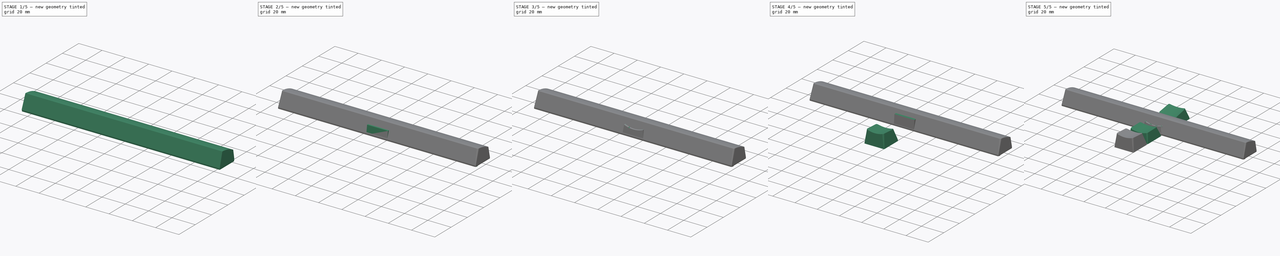
[diagram: build sequence overview — one tinted view per stage of 5, left to right]
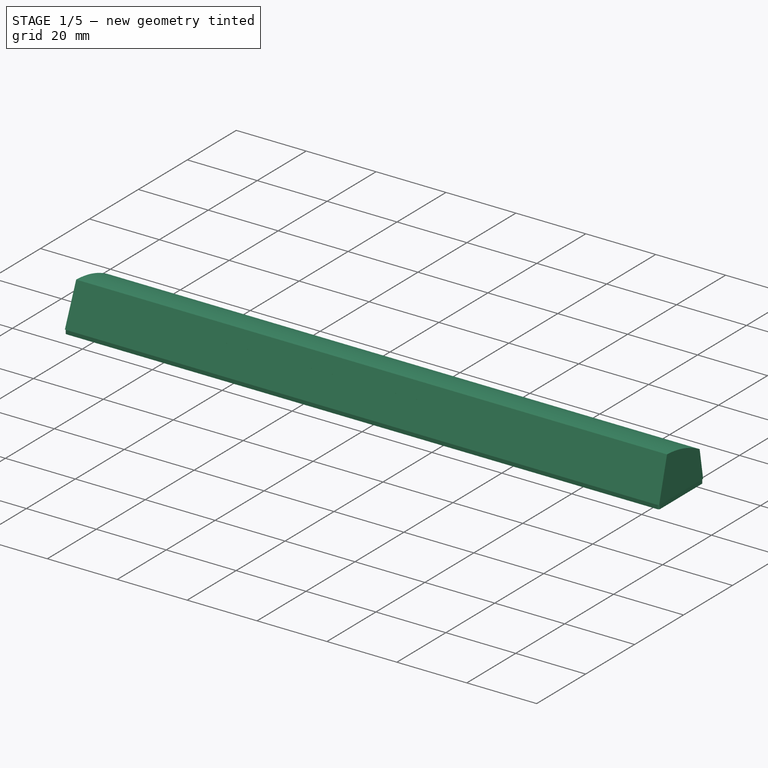
[diagram: stage 1 of 5 — iso view after this stage's code; geometry added in this stage tinted green]
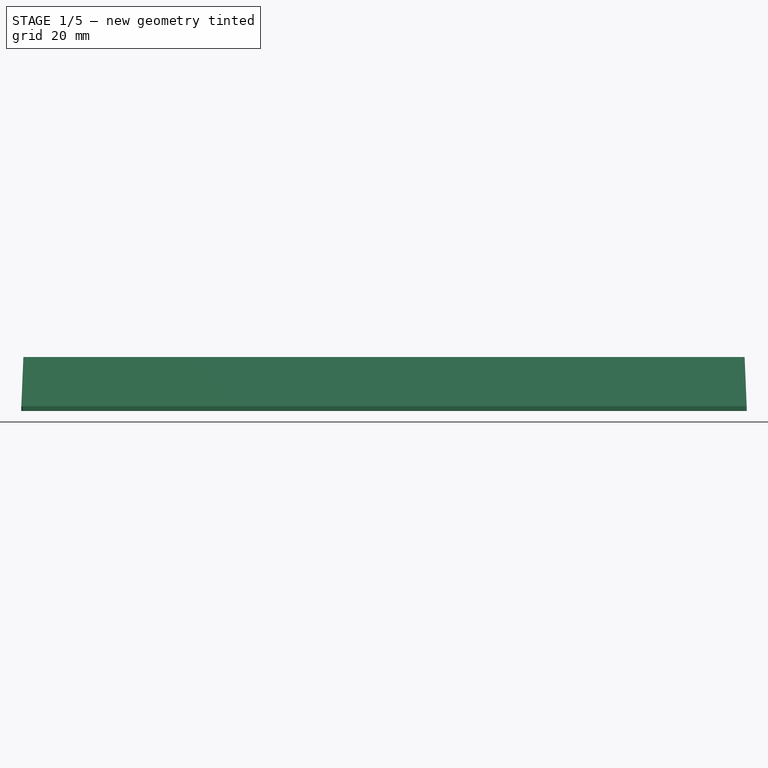
[diagram: stage 1 of 5 — front view after this stage's code; geometry added in this stage tinted green]
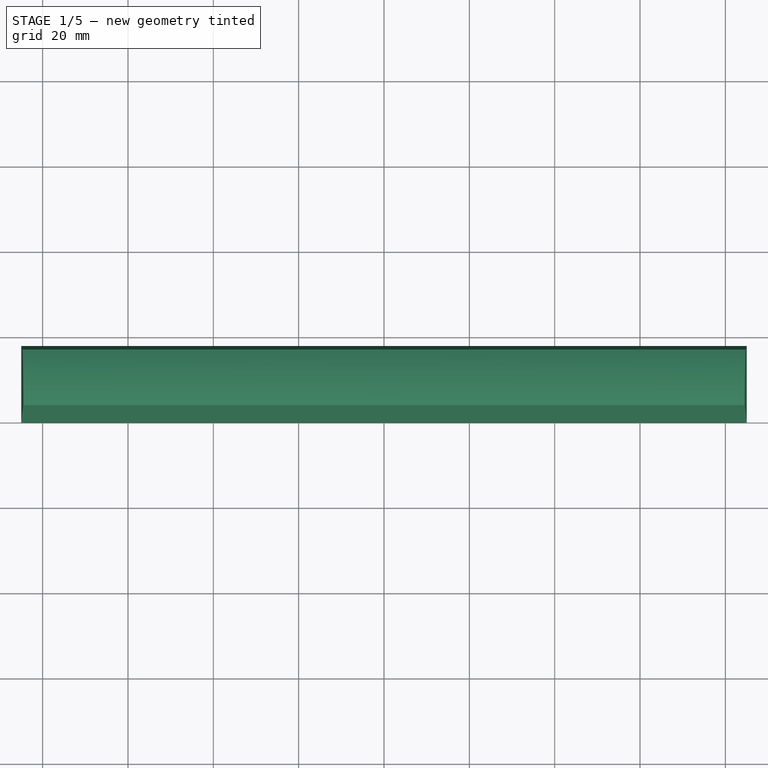
[diagram: stage 1 of 5 — top view after this stage's code; geometry added in this stage tinted green]
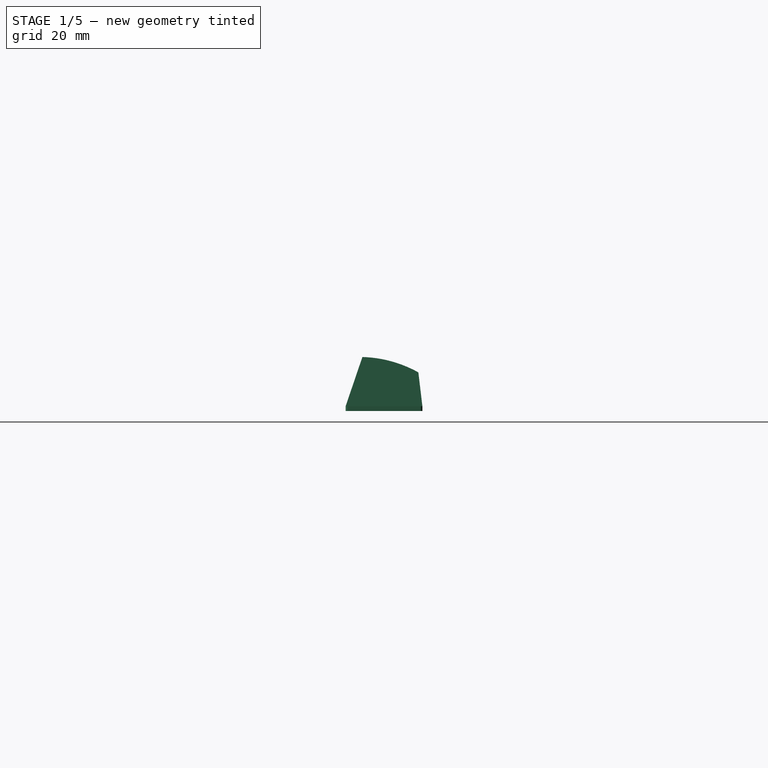
[diagram: stage 1 of 5 — right view after this stage's code; geometry added in this stage tinted green]
FCSTD DOCUMENT  (FreeCAD 1.1R20260414 (Git shallow))
Label: Caps
License: Creative Commons Attribution 4.0
objects: Sketcher::SketchObject×31, PartDesign::Pad×16, Part::DatumLine×6, Part::DatumPlane×6, App::Point×5, PartDesign::Draft×5, PartDesign::Pocket×5, PartDesign::Body×5, Image::ImagePlane×4, Part::DatumPoint×4, PartDesign::Thickness×4, Part::Fillet×4, PartDesign::SubtractiveLoft×4, PartDesign::SubShapeBinder×2, PartDesign::Fillet×2, PartDesign::Chamfer×2, App::VarSet×1
note: 187 computed .brp shape members not serialized (recipe doc carries the construction recipe); baked Part::Feature solids carry a one-line shape summary decoded from their .brp

FEATURE [Image::ImagePlane] AtariXE_space_bar_cap_sides_reference  label="AtariXE space bar cap sides reference"
  Placement = pos=(0,54.961,0) rot=(0.57735,0.57735,0.57735;2.0944rad)
  XSize = 19.3252
  YSize = 17.2297
FEATURE [Sketcher::SketchObject] Sketch015  label="SpaceSideReferenceSketch"
  ArcFitTolerance = 1e-06
  ExternalTypes = [0]
  FullyConstrained = false
  MakeInternals = false
  Placement = pos=(0,0,0) rot=(0.57735,0.57735,0.57735;2.0944rad)
  _ExternalGeoVersion = 1
  sketch-geometry (6):
    g0: LineSegment [constr] StartX=48.1308 StartY=5.71378 StartZ=0 EndX=47.0092 EndY=-6.43863 EndZ=0
    g1: LineSegment [constr] StartX=47.0092 StartY=-6.43863 StartZ=0 EndX=47.2669 EndY=-7.50802 EndZ=0
    g2: LineSegment [constr] StartX=47.2669 StartY=-7.50802 StartZ=0 EndX=64.766 EndY=-3.29133 EndZ=0
    g3: LineSegment [constr] StartX=64.766 StartY=-3.29133 StartZ=0 EndX=64.5083 EndY=-2.22194 EndZ=0
    g4: LineSegment [constr] StartX=64.5083 StartY=-2.22194 StartZ=0 EndX=61.724 EndY=5.28517 EndZ=0
    g5: ArcOfCircle [constr] CenterX=54.0517 CenterY=-22.2737 CenterZ=0 NormalX=0 NormalY=0 NormalZ=1 AngleXU=0 Radius=28.6069 StartAngle=1.29927 EndAngle=1.77928
  constraints (16):
    c: Coincident(g0,g1)
    c: Coincident(g1,g2)
    c: Coincident(g2,g3)
    c: Coincident(g3,g4)
    c: Coincident(g5,g4)
    c: Coincident(g5,g0)
    c: Radius(g5) = 28.6069  'SpaceTopRadius'
    c: Perpendicular(g2,g1)
    c: Perpendicular(g2,g3)
    c: Equal(g1,g3)
    c: Distance(g0,g4) = 13.6  'SpaceTop'
    c: Distance(g4,g2) = 9.1  'SpaceFrontHeight'
    c: Distance(g2) = 18  'SpaceBase'
    c: Distance(g1) = 1.1  'SpaceBaseHeight'
    c: Distance(g1,g0) = 13.25  'SpaceBackHeight'
    c: Angle(g2,g0) = 1.24231  'SpaceBackAngle'
FEATURE [App::Point] Origin009  label="Origin011"
  Role = Origin
FEATURE [Sketcher::SketchObject] Sketch016
  ArcFitTolerance = 1e-06
  AttachmentSupport = -> [Origin008]
  ExternalTypes = [0]
  FullyConstrained = true
  MakeInternals = false
  MapMode = 5
  _ExternalGeoVersion = 1
  sketch-geometry (4):
    g0: LineSegment StartX=-85 StartY=0 StartZ=0 EndX=85 EndY=0 EndZ=0
    g1: LineSegment StartX=85 StartY=0 StartZ=0 EndX=85 EndY=18 EndZ=0
    g2: LineSegment StartX=85 StartY=18 StartZ=0 EndX=-85 EndY=18 EndZ=0
    g3: LineSegment StartX=-85 StartY=18 StartZ=0 EndX=-85 EndY=0 EndZ=0
  constraints (11):
    c: Coincident(g0,g1)
    c: Coincident(g1,g2)
    c: Coincident(g2,g3)
    c: Coincident(g3,g0)
    c: Horizontal(g2)
    c: Vertical(g1)
    c: Vertical(g3)
    c: Distance(g1,g3) = 170
    c: Distance(g0,g2) = 18
    c: PointOnObject(g0,g-1)
    c: Symmetric(g0,g0,g-2)
FEATURE [PartDesign::Pad] Pad010
  Direction = (0,0,1)
  Length = 1.1
  Length2 = 10
  Profile = -> Sketch016
  ReferenceAxis = -> Sketch016 [N_Axis]
  SideType = 0
  Suppressed = false
  Type = 0
  Type2 = 0
  expr: Length = <<SpaceSideReferenceSketch>>.Constraints.SpaceBaseHeight
FEATURE [PartDesign::Fillet] Fillet004
  Base = -> Pad010 [Edge2,Edge5,Edge1,Edge8]
  BaseFeature = -> Pad010
  Radius = 0.5
  Refine = true
  SupportTransform = false
  Suppressed = false
  UseAllEdges = false
FEATURE [Sketcher::SketchObject] Sketch017
  ArcFitTolerance = 1e-06
  AttachmentSupport = -> [Origin008]
  ExternalGeometry = -> [Fillet004]
  ExternalTypes = [0,0,0]
  FullyConstrained = true
  MakeInternals = false
  MapMode = 5
  Placement = pos=(0,0,0) rot=(0.57735,0.57735,0.57735;2.0944rad)
  _ExternalGeoVersion = 1
  expr: Constraints[10] = <<SpaceSideReferenceSketch>>.Constraints.SpaceTop
  expr: Constraints[6] = <<SpaceSideReferenceSketch>>.Constraints.SpaceFrontHeight
  expr: Constraints[7] = <<SpaceSideReferenceSketch>>.Constraints.SpaceBackHeight
  expr: Constraints[8] = <<SpaceSideReferenceSketch>>.Constraints.SpaceBackAngle
  expr: Constraints[9] = <<SpaceSideReferenceSketch>>.Constraints.SpaceTopRadius
  sketch-geometry (4):
    g0: LineSegment StartX=0 StartY=1.1 StartZ=0 EndX=3.93721 EndY=12.6515 EndZ=0
    g1: ArcOfCircle CenterX=3.13697 CenterY=-15.9442 CenterZ=0 NormalX=0 NormalY=0 NormalZ=1 AngleXU=0 Radius=28.6069 StartAngle=1.06282 EndAngle=1.54282
    g2: LineSegment StartX=17.0518 StartY=9.05046 StartZ=0 EndX=18 EndY=1.1 EndZ=0
    g3: LineSegment StartX=18 StartY=1.1 StartZ=0 EndX=0 EndY=1.1 EndZ=0
  constraints (11):
    c: Coincident(g0,g-5)
    c: Coincident(g1,g2)
    c: Coincident(g2,g-4)
    c: Coincident(g2,g3)
    c: Coincident(g3,g0)
    c: Coincident(g1,g0)
    c: Distance(g1,g-3) = 9.1
    c: Distance(g-1,g0) = 13.25
    c: Angle(g3,g0) = 1.24231
    c: Radius(g1) = 28.6069
    c: Distance(g0,g1) = 13.6
FEATURE [PartDesign::Pad] Pad011
  BaseFeature = -> Fillet004
  Direction = (1,0,0)
  Length = 10
  Length2 = 10
  Profile = -> Sketch017
  ReferenceAxis = -> Sketch017 [N_Axis]
  SideType = 2
  Suppressed = false
  Type = 3
  Type2 = 0
  UpToFace = -> Fillet004 [Face7]
FEATURE [PartDesign::Draft] Draft004
  Angle = -2.4
  Base = -> Pad011 [Face17,Face15]
  BaseFeature = -> Pad011
  NeutralPlane = -> Pad011 [Face18]
  SupportTransform = false
  Suppressed = false
FEATURE [Sketcher::SketchObject] Sketch018
  ArcFitTolerance = 1e-06
  AttachmentSupport = -> [Draft004]
  ExternalGeometry = -> [Draft004]
  ExternalTypes = [0,0]
  FullyConstrained = true
  MakeInternals = false
  MapMode = 5
  Placement = pos=(0,0,0) rot=(1,0,0;3.14159rad)
  _ExternalGeoVersion = 1
  sketch-geometry (4):
    g0: LineSegment StartX=-83.75 StartY=-1.75 StartZ=0 EndX=-83.75 EndY=-16.75 EndZ=0
    g1: LineSegment StartX=-83.75 StartY=-16.75 StartZ=0 EndX=83.25 EndY=-16.75 EndZ=0
    g2: LineSegment StartX=83.25 StartY=-16.75 StartZ=0 EndX=83.25 EndY=-1.75 EndZ=0
    g3: LineSegment StartX=83.25 StartY=-1.75 StartZ=0 EndX=-83.75 EndY=-1.75 EndZ=0
  constraints (12):
    c: Coincident(g0,g1)
    c: Coincident(g1,g2)
    c: Coincident(g2,g3)
    c: Coincident(g3,g0)
    c: Vertical(g0)
    c: Vertical(g2)
    c: Horizontal(g1)
    c: Horizontal(g3)
    c: DistanceX(g-4,g0) = 1.25
    c: DistanceY(g-3,g0) = 1.25
    c: DistanceY(g0,g-4) = 1.25
    c: DistanceX(g1,g-3) = 1.25
FEATURE [Sketcher::SketchObject] Sketch019
  ArcFitTolerance = 1e-06
  AttachmentOffset = pos=(0,0,-7) rot=(0,0,1;0rad)
  AttachmentSupport = -> [Draft004]
  ExternalGeometry = -> [Draft004]
  ExternalTypes = [0,0]
  FullyConstrained = true
  MakeInternals = false
  MapMode = 5
  Placement = pos=(0,0,7) rot=(1,0,0;3.14159rad)
  _ExternalGeoVersion = 1
  sketch-geometry (4):
    g0: LineSegment StartX=-83.4168 StartY=-5.18721 StartZ=0 EndX=-83.4168 EndY=-15.8018 EndZ=0
    g1: LineSegment StartX=-83.4168 StartY=-15.8018 StartZ=0 EndX=83.4168 EndY=-15.8018 EndZ=0
    g2: LineSegment StartX=83.4168 StartY=-15.8018 StartZ=0 EndX=83.4168 EndY=-5.18721 EndZ=0
    g3: LineSegment StartX=83.4168 StartY=-5.18721 StartZ=0 EndX=-83.4168 EndY=-5.18721 EndZ=0
  constraints (12):
    c: Coincident(g0,g1)
    c: Coincident(g1,g2)
    c: Coincident(g2,g3)
    c: Coincident(g3,g0)
    c: Vertical(g0)
    c: Vertical(g2)
    c: Horizontal(g1)
    c: Horizontal(g3)
    c: DistanceY(g-3,g0) = 1.25
    c: DistanceX(g-3,g0) = 1.25
    c: DistanceY(g0,g-3) = 1.25
    c: DistanceX(g1,g-4) = 1.25
FEATURE [PartDesign::SubtractiveLoft] SubtractiveLoft
  BaseFeature = -> Draft004
  Closed = false
  Profile = -> Sketch018
  Ruled = false
  Sections = -> [Sketch019]
  Suppressed = false
FEATURE [Sketcher::SketchObject] Sketch020
  ArcFitTolerance = 1e-06
  AttachmentSupport = -> [SubtractiveLoft]
  ExternalGeometry = -> [SubtractiveLoft]
  ExternalTypes = [0,0]
  FullyConstrained = true
  MakeInternals = false
  MapMode = 5
  Placement = pos=(0,0,7) rot=(1,0,0;3.14159rad)
  _ExternalGeoVersion = 1
  sketch-geometry (41):
    g0: Circle CenterX=-5.9e-15 CenterY=-9 CenterZ=0 NormalX=0 NormalY=0 NormalZ=1 AngleXU=0 Radius=2.8
    g1: LineSegment StartX=-0.575 StartY=-6.9 StartZ=0 EndX=0.575 EndY=-6.9 EndZ=0
    g2: LineSegment StartX=0.575 StartY=-6.9 StartZ=0 EndX=0.575 EndY=-8.425 EndZ=0
    g3: LineSegment StartX=0.575 StartY=-8.425 StartZ=0 EndX=2.1 EndY=-8.425 EndZ=0
    g4: LineSegment StartX=2.1 StartY=-8.425 StartZ=0 EndX=2.1 EndY=-9.575 EndZ=0
    g5: LineSegment StartX=2.1 StartY=-9.575 StartZ=0 EndX=0.575 EndY=-9.575 EndZ=0
    g6: LineSegment StartX=0.575 StartY=-9.575 StartZ=0 EndX=0.575 EndY=-11.1 EndZ=0
    g7: LineSegment StartX=0.575 StartY=-11.1 StartZ=0 EndX=-0.575 EndY=-11.1 EndZ=0
    g8: LineSegment StartX=-0.575 StartY=-11.1 StartZ=0 EndX=-0.575 EndY=-9.575 EndZ=0
    g9: LineSegment StartX=-0.575 StartY=-9.575 StartZ=0 EndX=-2.1 EndY=-9.575 EndZ=0
    g10: LineSegment StartX=-2.1 StartY=-9.575 StartZ=0 EndX=-2.1 EndY=-8.425 EndZ=0
    g11: LineSegment StartX=-2.1 StartY=-8.425 StartZ=0 EndX=-0.575 EndY=-8.425 EndZ=0
    g12: LineSegment StartX=-0.575 StartY=-8.425 StartZ=0 EndX=-0.575 EndY=-6.9 EndZ=0
    g13: GeomPoint [constr] X=50 Y=-9 Z=0
    g14: GeomPoint [constr] X=-50 Y=-9 Z=0
    g15: Circle CenterX=-50 CenterY=-9 CenterZ=0 NormalX=0 NormalY=0 NormalZ=1 AngleXU=0 Radius=2.8
    g16: Circle CenterX=50 CenterY=-9 CenterZ=0 NormalX=0 NormalY=0 NormalZ=1 AngleXU=0 Radius=2.8
    g17: LineSegment StartX=-50.575 StartY=-6.9 StartZ=0 EndX=-49.425 EndY=-6.9 EndZ=0
    g18: LineSegment StartX=-49.425 StartY=-6.9 StartZ=0 EndX=-49.425 EndY=-8.425 EndZ=0
    g19: LineSegment StartX=-49.425 StartY=-8.425 StartZ=0 EndX=-47.9 EndY=-8.425 EndZ=0
    g20: LineSegment StartX=-47.9 StartY=-8.425 StartZ=0 EndX=-47.9 EndY=-9.575 EndZ=0
    g21: LineSegment StartX=-47.9 StartY=-9.575 StartZ=0 EndX=-49.425 EndY=-9.575 EndZ=0
    g22: LineSegment StartX=-49.425 StartY=-9.575 StartZ=0 EndX=-49.425 EndY=-11.1 EndZ=0
    g23: LineSegment StartX=-49.425 StartY=-11.1 StartZ=0 EndX=-50.575 EndY=-11.1 EndZ=0
    g24: LineSegment StartX=-50.575 StartY=-11.1 StartZ=0 EndX=-50.575 EndY=-9.575 EndZ=0
    g25: LineSegment StartX=-50.575 StartY=-9.575 StartZ=0 EndX=-52.1 EndY=-9.575 EndZ=0
    g26: LineSegment StartX=-52.1 StartY=-9.575 StartZ=0 EndX=-52.1 EndY=-8.425 EndZ=0
    g27: LineSegment StartX=-52.1 StartY=-8.425 StartZ=0 EndX=-50.575 EndY=-8.425 EndZ=0
    g28: LineSegment StartX=-50.575 StartY=-8.425 StartZ=0 EndX=-50.575 EndY=-6.9 EndZ=0
    g29: LineSegment StartX=49.425 StartY=-6.9 StartZ=0 EndX=50.575 EndY=-6.9 EndZ=0
    g30: LineSegment StartX=50.575 StartY=-6.9 StartZ=0 EndX=50.575 EndY=-8.425 EndZ=0
    g31: LineSegment StartX=50.575 StartY=-8.425 StartZ=0 EndX=52.1 EndY=-8.425 EndZ=0
    g32: LineSegment StartX=52.1 StartY=-8.425 StartZ=0 EndX=52.1 EndY=-9.575 EndZ=0
    g33: LineSegment StartX=52.1 StartY=-9.575 StartZ=0 EndX=50.575 EndY=-9.575 EndZ=0
    g34: LineSegment StartX=50.575 StartY=-9.575 StartZ=0 EndX=50.575 EndY=-11.1 EndZ=0
    g35: LineSegment StartX=50.575 StartY=-11.1 StartZ=0 EndX=49.425 EndY=-11.1 EndZ=0
    g36: LineSegment StartX=49.425 StartY=-11.1 StartZ=0 EndX=49.425 EndY=-9.575 EndZ=0
    g37: LineSegment StartX=49.425 StartY=-9.575 StartZ=0 EndX=47.9 EndY=-9.575 EndZ=0
    g38: LineSegment StartX=47.9 StartY=-9.575 StartZ=0 EndX=47.9 EndY=-8.425 EndZ=0
    g39: LineSegment StartX=47.9 StartY=-8.425 StartZ=0 EndX=49.425 EndY=-8.425 EndZ=0
    g40: LineSegment StartX=49.425 StartY=-8.425 StartZ=0 EndX=49.425 EndY=-6.9 EndZ=0
  constraints (114):
    c: Diameter(g0) = 5.6
    c: Symmetric(g-3,g-4,g0)
    c: Horizontal(g1)
    c: Coincident(g1,g2)
    c: Vertical(g2)
    c: Coincident(g2,g3)
    c: Horizontal(g3)
    c: Coincident(g3,g4)
    c: Vertical(g4)
    c: Coincident(g4,g5)
    c: Horizontal(g5)
    c: Coincident(g5,g6)
    c: Vertical(g6)
    c: Coincident(g6,g7)
    c: Horizontal(g7)
    c: Coincident(g7,g8)
    c: Vertical(g8)
    c: Coincident(g8,g9)
    c: Horizontal(g9)
    c: Coincident(g9,g10)
    c: Vertical(g10)
    c: Coincident(g10,g11)
    c: Horizontal(g11)
    c: Coincident(g11,g12)
    c: Coincident(g12,g1)
    c: Vertical(g12)
    c: Vertical(g11,g8)
    c: Vertical(g2,g5)
    c: Horizontal(g11,g2)
    c: Horizontal(g8,g5)
    c: Equal(g2,g3)
    c: Equal(g3,g9)
    c: Equal(g9,g8)
    c: Equal(g1,g4)
    c: Symmetric(g8,g2,g0)
    c: DistanceX(g1,g1) = 1.15
    c: DistanceX(g10,g3) = 4.2
    c: Symmetric(g14,g13,g0)
    c: Horizontal(g14,g13)
    c: DistanceX(g14,g13) = 100
    c: Coincident(g15,g14)
    c: Coincident(g16,g13)
    c: Equal(g0,g16)
    c: Equal(g16,g15)
    c: Horizontal(g17)
    c: Coincident(g17,g18)
    c: Vertical(g18)
    c: Coincident(g18,g19)
    c: Horizontal(g19)
    c: Coincident(g19,g20)
    c: Vertical(g20)
    c: Coincident(g20,g21)
    c: Horizontal(g21)
    c: Coincident(g21,g22)
    c: Vertical(g22)
    c: Coincident(g22,g23)
    c: Horizontal(g23)
    c: Coincident(g23,g24)
    c: Vertical(g24)
    c: Coincident(g24,g25)
    c: Horizontal(g25)
    c: Coincident(g25,g26)
    c: Vertical(g26)
    c: Coincident(g26,g27)
    c: Horizontal(g27)
    c: Coincident(g27,g28)
    c: Coincident(g28,g17)
    c: Vertical(g28)
    c: Horizontal(g27,g18)
    c: Horizontal(g24,g21)
    c: Vertical(g27,g24)
    c: Vertical(g18,g21)
    c: Equal(g18,g19)
    c: Equal(g19,g25)
    c: Equal(g25,g24)
    c: Equal(g17,g20)
    c: Horizontal(g19,g10)
    c: Symmetric(g24,g18,g14)
    c: Horizontal(g17,g1)
    c: Horizontal(g29)
    c: Coincident(g29,g30)
    c: Vertical(g30)
    c: Coincident(g30,g31)
    c: Horizontal(g31)
    c: Coincident(g31,g32)
    c: Vertical(g32)
    c: Coincident(g32,g33)
    c: Horizontal(g33)
    c: Coincident(g33,g34)
    c: Vertical(g34)
    c: Coincident(g34,g35)
    c: Horizontal(g35)
    c: Coincident(g35,g36)
    c: Vertical(g36)
    c: Coincident(g36,g37)
    c: Horizontal(g37)
    c: Coincident(g37,g38)
    c: Vertical(g38)
    c: Coincident(g38,g39)
    c: Horizontal(g39)
    c: Coincident(g39,g40)
    c: Coincident(g40,g29)
    c: Vertical(g40)
    c: Horizontal(g39,g30)
    c: Horizontal(g36,g33)
    c: Vertical(g39,g36)
    c: Vertical(g30,g33)
    c: Equal(g30,g31)
    c: Equal(g31,g37)
    c: Equal(g37,g36)
    c: Equal(g29,g32)
    c: Symmetric(g36,g30,g13)
    c: Horizontal(g3,g38)
    c: Horizontal(g1,g29)
FEATURE [PartDesign::Pad] Pad012
  BaseFeature = -> SubtractiveLoft
  Direction = (0,0,-1)
  Length = 10
  Length2 = 10
  Profile = -> Sketch020
  ReferenceAxis = -> Sketch020 [N_Axis]
  SideType = 0
  Suppressed = false
  Type = 3
  Type2 = 0
  UpToFace = -> SubtractiveLoft [Face2]
FEATURE [PartDesign::Chamfer] Chamfer
  Angle = 45
  Base = -> Pad012 [Edge62,Edge61,Edge60]
  BaseFeature = -> Pad012
  ChamferType = 0
  FlipDirection = false
  Size = 1
  Size2 = 1
  SupportTransform = false
  Suppressed = false
  UseAllEdges = false
FEATURE [Sketcher::SketchObject] Sketch021
  ArcFitTolerance = 1e-06
  AttachmentOffset = pos=(0,0,-0.5) rot=(0,0,1;0rad)
  AttachmentSupport = -> [Chamfer]
  ExternalGeometry = -> [Chamfer]
  ExternalTypes = [0,0]
  FullyConstrained = true
  MakeInternals = false
  MapMode = 5
  Placement = pos=(0,0,0.5) rot=(1,0,0;3.14159rad)
  _ExternalGeoVersion = 1
  sketch-geometry (26):
    g0: LineSegment StartX=-19.5 StartY=-5.5 StartZ=0 EndX=-18.5 EndY=-5.5 EndZ=0
    g1: LineSegment StartX=-18.5 StartY=-5.5 StartZ=0 EndX=-18.5 EndY=-8.5 EndZ=0
    g2: LineSegment StartX=-18.5 StartY=-8.5 StartZ=0 EndX=-15.5 EndY=-8.5 EndZ=0
    g3: LineSegment StartX=-15.5 StartY=-8.5 StartZ=0 EndX=-15.5 EndY=-9.5 EndZ=0
    g4: LineSegment StartX=-15.5 StartY=-9.5 StartZ=0 EndX=-18.5 EndY=-9.5 EndZ=0
    g5: LineSegment StartX=-18.5 StartY=-9.5 StartZ=0 EndX=-18.5 EndY=-12.5 EndZ=0
    g6: LineSegment StartX=-18.5 StartY=-12.5 StartZ=0 EndX=-19.5 EndY=-12.5 EndZ=0
    g7: LineSegment StartX=-19.5 StartY=-12.5 StartZ=0 EndX=-19.5 EndY=-9.5 EndZ=0
    g8: LineSegment StartX=-19.5 StartY=-9.5 StartZ=0 EndX=-22.5 EndY=-9.5 EndZ=0
    g9: LineSegment StartX=-22.5 StartY=-9.5 StartZ=0 EndX=-22.5 EndY=-8.5 EndZ=0
    g10: LineSegment StartX=-22.5 StartY=-8.5 StartZ=0 EndX=-19.5 EndY=-8.5 EndZ=0
    g11: LineSegment StartX=-19.5 StartY=-8.5 StartZ=0 EndX=-19.5 EndY=-5.5 EndZ=0
    g12: GeomPoint [constr] X=-19 Y=-9 Z=0
    g13: GeomPoint [constr] X=-4.9e-15 Y=-9 Z=0
    g14: LineSegment StartX=18.5 StartY=-5.5 StartZ=0 EndX=18.5 EndY=-8.5 EndZ=0
    g15: LineSegment StartX=18.5 StartY=-8.5 StartZ=0 EndX=15.5 EndY=-8.5 EndZ=0
    g16: LineSegment StartX=15.5 StartY=-8.5 StartZ=0 EndX=15.5 EndY=-9.5 EndZ=0
    g17: LineSegment StartX=15.5 StartY=-9.5 StartZ=0 EndX=18.5 EndY=-9.5 EndZ=0
    g18: LineSegment StartX=18.5 StartY=-9.5 StartZ=0 EndX=18.5 EndY=-12.5 EndZ=0
    g19: LineSegment StartX=18.5 StartY=-12.5 StartZ=0 EndX=19.5 EndY=-12.5 EndZ=0
    g20: LineSegment StartX=19.5 StartY=-12.5 StartZ=0 EndX=19.5 EndY=-9.5 EndZ=0
    g21: LineSegment StartX=19.5 StartY=-9.5 StartZ=0 EndX=22.5 EndY=-9.5 EndZ=0
    g22: LineSegment StartX=22.5 StartY=-9.5 StartZ=0 EndX=22.5 EndY=-8.5 EndZ=0
    g23: LineSegment StartX=22.5 StartY=-8.5 StartZ=0 EndX=19.5 EndY=-8.5 EndZ=0
    g24: LineSegment StartX=19.5 StartY=-8.5 StartZ=0 EndX=19.5 EndY=-5.5 EndZ=0
    g25: LineSegment StartX=19.5 StartY=-5.5 StartZ=0 EndX=18.5 EndY=-5.5 EndZ=0
  constraints (71):
    c: Horizontal(g0)
    c: Coincident(g0,g1)
    c: Vertical(g1)
    c: Coincident(g1,g2)
    c: Horizontal(g2)
    c: Coincident(g2,g3)
    c: Vertical(g3)
    c: Coincident(g3,g4)
    c: Horizontal(g4)
    c: Coincident(g4,g5)
    c: Vertical(g5)
    c: Coincident(g5,g6)
    c: Horizontal(g6)
    c: Coincident(g6,g7)
    c: Vertical(g7)
    c: Coincident(g7,g8)
    c: Horizontal(g8)
    c: Coincident(g8,g9)
    c: Vertical(g9)
    c: Coincident(g9,g10)
    c: Horizontal(g10)
    c: Coincident(g10,g11)
    c: Coincident(g11,g0)
    c: Vertical(g11)
    c: Equal(g1,g2)
    c: Equal(g2,g8)
    c: Equal(g8,g7)
    c: Equal(g0,g3)
    c: Horizontal(g10,g1)
    c: Horizontal(g7,g4)
    c: Vertical(g10,g7)
    c: Vertical(g1,g4)
    c: DistanceY(g5,g0) = 7
    c: DistanceX(g0,g0) = 1
    c: Symmetric(g7,g1,g12)
    c: Symmetric(g-4,g-3,g13)
    c: Horizontal(g12,g13)
    c: DistanceX(g12,g13) = 19
    c: Vertical(g14)
    c: Coincident(g14,g15)
    c: Horizontal(g15)
    c: Coincident(g15,g16)
    c: Coincident(g16,g17)
    c: Horizontal(g17)
    c: Coincident(g17,g18)
    c: Vertical(g18)
    c: Coincident(g18,g19)
    c: Horizontal(g19)
    c: Coincident(g19,g20)
    c: Vertical(g20)
    c: Coincident(g20,g21)
    c: Horizontal(g21)
    c: Coincident(g21,g22)
    c: Vertical(g22)
    c: Coincident(g22,g23)
    c: Horizontal(g23)
    c: Coincident(g23,g24)
    c: Vertical(g24)
    c: Coincident(g24,g25)
    c: Coincident(g25,g14)
    c: Horizontal(g25)
    c: Symmetric(g0,g14,g-2)
    c: Equal(g24,g23)
    c: Equal(g23,g17)
    c: Equal(g17,g18)
    c: Vertical(g14,g17)
    c: Vertical(g23,g20)
    c: Horizontal(g17,g20)
    c: Symmetric(g2,g15,g-2)
    c: Equal(g25,g22)
    c: Symmetric(g3,g16,g-2)
FEATURE [PartDesign::Pad] Pad013
  BaseFeature = -> Chamfer
  Direction = (0,0,-1)
  Length = 10
  Length2 = 10
  Profile = -> Sketch021
  ReferenceAxis = -> Sketch021 [N_Axis]
  Reversed = true
  SideType = 0
  Suppressed = false
  Type = 3
  Type2 = 0
  UpToFace = -> Chamfer [Face1]
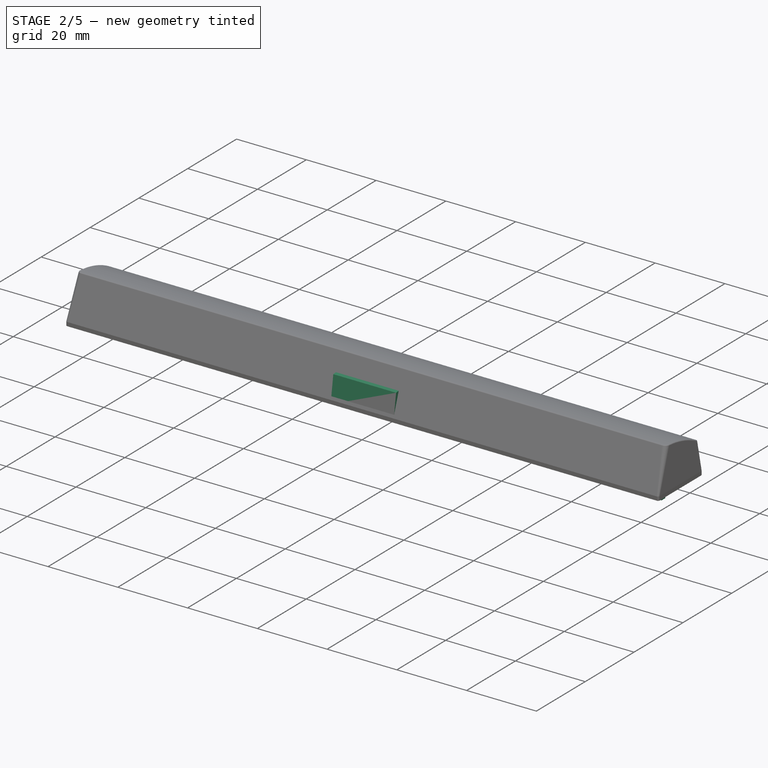
[diagram: stage 2 of 5 — iso view after this stage's code; geometry added in this stage tinted green]
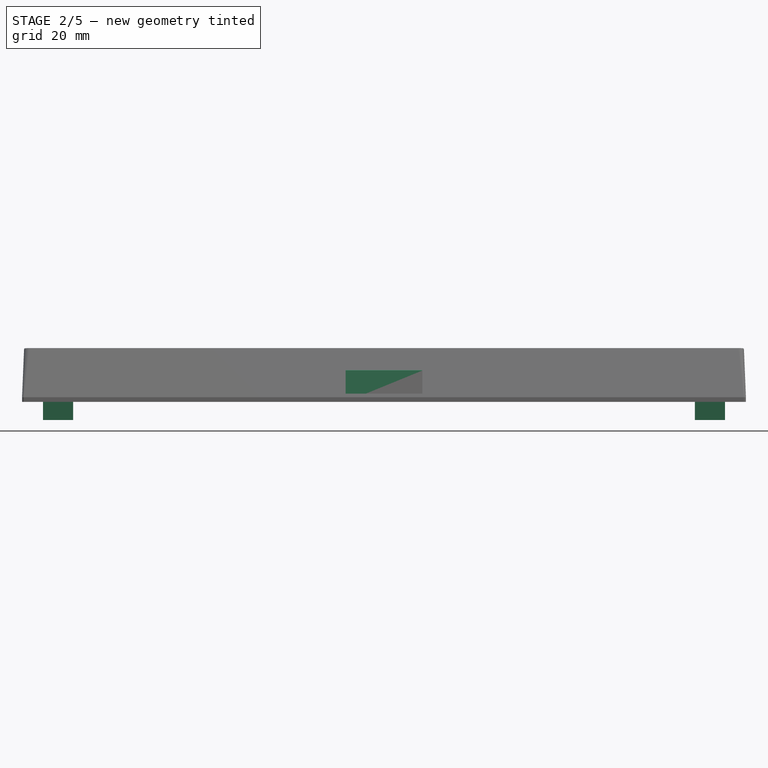
[diagram: stage 2 of 5 — front view after this stage's code; geometry added in this stage tinted green]
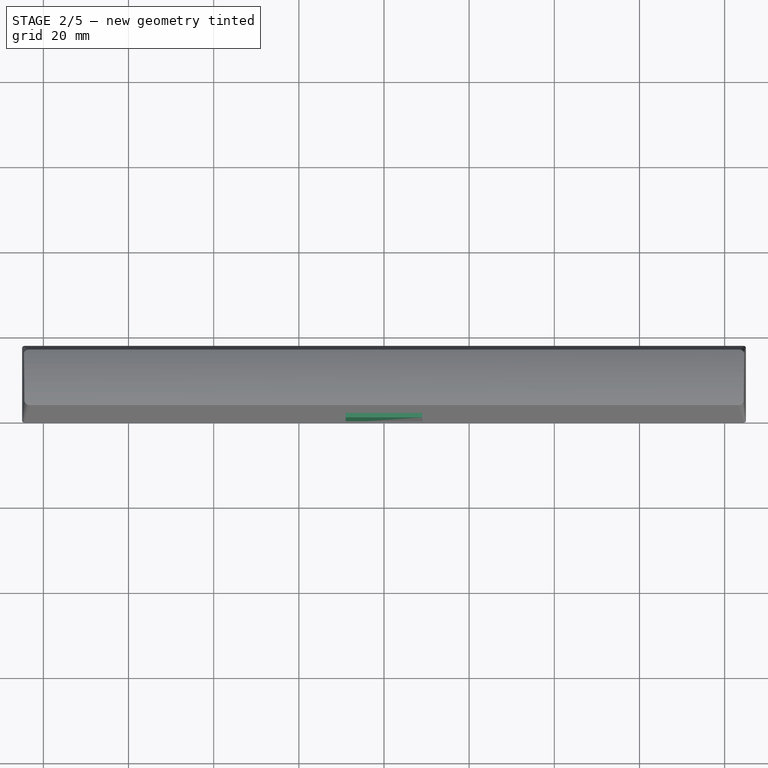
[diagram: stage 2 of 5 — top view after this stage's code; geometry added in this stage tinted green]
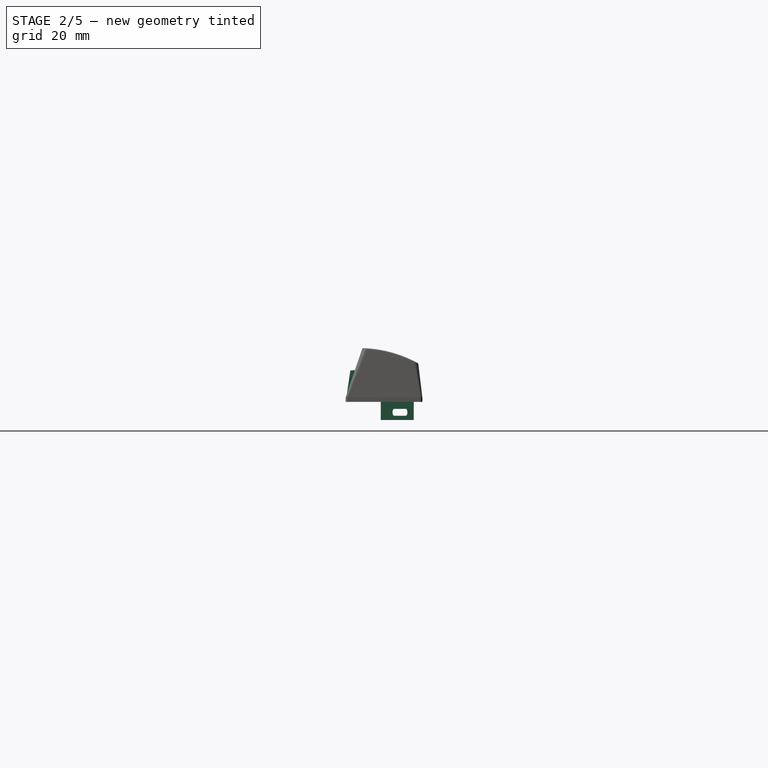
[diagram: stage 2 of 5 — right view after this stage's code; geometry added in this stage tinted green]
FEATURE [Image::ImagePlane] Atari_XE_caps_sides_reference  label="Atari XE caps sides reference"
  Placement = pos=(0,0,0) rot=(0.57735,0.57735,0.57735;2.0944rad)
  XSize = 169.059
  YSize = 80.0948
FEATURE [App::Point] Origin001
  Role = Origin
FEATURE [Sketcher::SketchObject] Sketch  label="SidesReferenceSketch"
  ArcFitTolerance = 1e-06
  AttachmentSupport = -> [Origin]
  ExternalTypes = [0]
  FullyConstrained = false
  MakeInternals = false
  MapMode = 5
  Placement = pos=(0,0,0) rot=(0.57735,0.57735,0.57735;2.0944rad)
  _ExternalGeoVersion = 1
  expr: .Constraints.BaseVerticalWallHeight = <<Data>>.FrontVerticalSectionHeight
  sketch-geometry (26):
    g0: LineSegment [constr] StartX=-35.3217 StartY=-11.1027 StartZ=0 EndX=-33.9923 EndY=-3.78672 EndZ=0
    g1: LineSegment [constr] StartX=-33.9923 StartY=-3.78672 StartZ=0 EndX=-21.0368 EndY=-2.87568 EndZ=0
    g2: LineSegment [constr] StartX=-21.0368 StartY=-2.87568 StartZ=0 EndX=-17.4035 EndY=-10.6792 EndZ=0
    g3: LineSegment [constr] StartX=-17.4035 StartY=-10.6792 StartZ=0 EndX=-17.4356 EndY=-11.6787 EndZ=0
    g4: LineSegment [constr] StartX=-17.4356 StartY=-11.6787 StartZ=0 EndX=-35.3217 EndY=-11.1027 EndZ=0
    g5: LineSegment [constr] StartX=-74.2912 StartY=-0.293077 StartZ=0 EndX=-56.2912 EndY=-0.293077 EndZ=0
    g6: LineSegment [constr] StartX=-56.2912 StartY=-0.293077 StartZ=0 EndX=-57.6662 EndY=10.9281 EndZ=0
    g7: ArcOfCircle [constr] CenterX=-65.2912 CenterY=30.4949 CenterZ=0 NormalX=0 NormalY=0 NormalZ=1 AngleXU=0 Radius=21 StartAngle=4.3408 EndAngle=5.08398
    g8: LineSegment [constr] StartX=-72.9162 StartY=10.9281 StartZ=0 EndX=-74.2912 EndY=-0.293077 EndZ=0
    g9: GeomPoint [constr] X=-65.2912 Y=-0.293077 Z=0
    g10: GeomPoint [constr] X=-65.2912 Y=9.4949 Z=0
    g11: LineSegment [constr] StartX=-33.2366 StartY=11.014 StartZ=0 EndX=-20.0204 EndY=9.84275 EndZ=0
    g12: LineSegment [constr] StartX=-20.0204 StartY=9.84275 StartZ=0 EndX=-18.7294 EndY=-0.105851 EndZ=0
    g13: LineSegment [constr] StartX=-18.7294 StartY=-0.105851 StartZ=0 EndX=-19.0044 EndY=-1.0673 EndZ=0
    g14: LineSegment [constr] StartX=-19.0044 StartY=-1.0673 StartZ=0 EndX=-36.3477 EndY=3.89319 EndZ=0
    g15: LineSegment [constr] StartX=-36.3477 StartY=3.89319 StartZ=0 EndX=-33.2366 EndY=11.014 EndZ=0
    g16: LineSegment [constr] StartX=-37.1276 StartY=-23.0111 StartZ=0 EndX=-19.1837 EndY=-23.8627 EndZ=0
    g17: LineSegment [constr] StartX=-19.1837 StartY=-23.8627 StartZ=0 EndX=-19.1363 EndY=-22.8638 EndZ=0
    g18: LineSegment [constr] StartX=-19.1363 StartY=-22.8638 StartZ=0 EndX=-22.8117 EndY=-14.4829 EndZ=0
    g19: LineSegment [constr] StartX=-22.8117 StartY=-14.4829 StartZ=0 EndX=-35.8873 EndY=-14.0695 EndZ=0
    g20: LineSegment [constr] StartX=-35.8873 StartY=-14.0695 StartZ=0 EndX=-37.1276 EndY=-23.0111 EndZ=0
    g21: LineSegment [constr] StartX=-34.7052 StartY=-37.1134 StartZ=0 EndX=-16.7258 EndY=-35.3436 EndZ=0
    g22: LineSegment [constr] StartX=-16.7258 StartY=-35.3436 StartZ=0 EndX=-16.8237 EndY=-34.3484 EndZ=0
    g23: LineSegment [constr] StartX=-16.8237 StartY=-34.3484 StartZ=0 EndX=-21.7126 EndY=-24.6749 EndZ=0
    g24: LineSegment [constr] StartX=-21.7126 StartY=-24.6749 StartZ=0 EndX=-34.9297 EndY=-25.1245 EndZ=0
    g25: LineSegment [constr] StartX=-34.9297 StartY=-25.1245 StartZ=0 EndX=-34.7052 EndY=-37.1134 EndZ=0
  constraints (65):
    c: Coincident(g0,g1)
    c: Coincident(g1,g2)
    c: Coincident(g2,g3)
    c: Coincident(g3,g4)
    c: Coincident(g4,g0)
    c: Distance(g4) = 17.8953  'R2base'
    c: Distance(g3) = 1  'BaseVerticalWallHeight'
    c: Distance(g1) = 12.9874  'R2top'
    c: Distance(g0) = 7.43579  'R2back'
    c: Distance(g2) = 8.60796  'R2front'
    c: Block(g1)
    c: Block(g4)
    c: Angle(g4,g0) = 1.42323  'R2backAngle'
    c: Horizontal(g5)
    c: Coincident(g5,g6)
    c: Coincident(g7,g8)
    c: Coincident(g8,g5)
    c: Symmetric(g5,g5,g9)
    c: Vertical(g9,g7)
    c: Horizontal(g7,g6)
    c: Radius(g7) = 21  'topRadius1U'
    c: Coincident(g6,g7)
    c: Perpendicular(g3,g4)
    c: Angle(g5,g8) = 1.44887  'SidesAngle'
    c: DistanceX(g5,g5) = 18  'BaseWidth1U'
    c: PointOnObject(g10,g7)
    c: Vertical(g9,g10)
    c: DistanceY(g10,g7) = 1.43321  'TopDepth'
    c: DistanceX(g7,g6) = 15.25  'Top1UWidth'
    c: Coincident(g11,g12)
    c: Coincident(g12,g13)
    c: Coincident(g13,g14)
    c: Coincident(g14,g15)
    c: Coincident(g15,g11)
    c: Perpendicular(g13,g14)
    c: Distance(g11) = 13.268  'r1top'
    c: Equal(g3,g13)
    c: Distance(g12) = 10.032  'r1front'
    c: Distance(g15) = 7.77077  'r1back'
    c: Distance(g14) = 18.0387  'r1bottom'
    c: Angle(g14,g15) = 1.43747  'r1backangle'
    c: Coincident(g16,g17)
    c: Coincident(g17,g18)
    c: Coincident(g18,g19)
    c: Coincident(g19,g20)
    c: Coincident(g20,g16)
    c: Perpendicular(g17,g16)
    c: Equal(g3,g17)
    c: Distance(g19) = 13.0821  'R3top'
    c: Distance(g20) = 9.02721  'R3back'
    c: Distance(g16) = 17.964  'R3bottom'
    c: Distance(g18) = 9.15142  'R3front'
    c: Coincident(g21,g22)
    c: Coincident(g22,g23)
    c: Coincident(g23,g24)
    c: Coincident(g24,g25)
    c: Coincident(g25,g21)
    c: Angle(g16,g20) = 1.48039  'R3backAngle'
    c: Distance(g24) = 13.2248  'R4top'
    c: Distance(g25) = 11.9911  'R4back'
    c: Distance(g23) = 10.8387  'R4front'
    c: Perpendicular(g22,g21)
    c: Equal(g22,g3)
    c: Distance(g21) = 18.0663  'R4bottom'
    c: Angle(g21,g25) = 1.4914  'R4backAngle'
FEATURE [App::VarSet] VarSet  label="Data"
  FrontVerticalSectionHeight = 1
  Width = 0
  Widthmm = 18
  expr: Widthmm = href(<<SidesReferenceSketch>>.Constraints.BaseWidth1U) + (Width == 0 ? 0 : (Width == 1 ? 0.25 : (Width == 2 ? 0.5 : (Width == 3 ? 0.75 : 1.25)))) * 19.05 mm
FEATURE [Sketcher::SketchObject] Sketch001
  ArcFitTolerance = 1e-06
  AttachmentSupport = -> [Origin]
  ExternalTypes = [0]
  FullyConstrained = true
  MakeInternals = false
  MapMode = 5
  Placement = pos=(0,0,0) rot=(0.57735,0.57735,0.57735;2.0944rad)
  _ExternalGeoVersion = 1
  expr: Constraints[10] = <<SidesReferenceSketch>>.Constraints.R2back
  expr: Constraints[11] = <<SidesReferenceSketch>>.Constraints.R2front
  expr: Constraints[12] = <<SidesReferenceSketch>>.Constraints.R2top
  expr: Constraints[13] = <<SidesReferenceSketch>>.Constraints.R2backAngle
  expr: Constraints[8] = <<SidesReferenceSketch>>.Constraints.R2base
  expr: Constraints[9] = <<Data>>.FrontVerticalSectionHeight
  sketch-geometry (5):
    g0: LineSegment StartX=0 StartY=0 StartZ=0 EndX=17.8953 EndY=0 EndZ=0
    g1: LineSegment StartX=17.8953 StartY=0 StartZ=0 EndX=17.8953 EndY=1 EndZ=0
    g2: LineSegment StartX=17.8953 StartY=1 StartZ=0 EndX=14.0127 EndY=8.68256 EndZ=0
    g3: LineSegment StartX=14.0127 StartY=8.68256 StartZ=0 EndX=1.09327 EndY=7.35498 EndZ=0
    g4: LineSegment StartX=1.09327 StartY=7.35498 StartZ=0 EndX=0 EndY=0 EndZ=0
  constraints (14):
    c: Coincident(g-1,g0)
    c: PointOnObject(g0,g-1)
    c: Coincident(g0,g1)
    c: Vertical(g1)
    c: Coincident(g1,g2)
    c: Coincident(g2,g3)
    c: Coincident(g3,g4)
    c: Coincident(g4,g0)
    c: DistanceX(g0,g0) = 17.8953
    c: DistanceY(g1,g1) = 1
    c: Distance(g4) = 7.43579
    c: Distance(g2) = 8.60796
    c: Distance(g3) = 12.9874
    c: Angle(g0,g4) = 1.42323
FEATURE [PartDesign::Pad] Pad
  Direction = (1,0,0)
  Length = 18
  Length2 = 10
  Profile = -> Sketch001
  ReferenceAxis = -> Sketch001 [N_Axis]
  SideType = 2
  Suppressed = false
  Type = 0
  Type2 = 0
  expr: Length = <<Data>>.Widthmm
FEATURE [PartDesign::Chamfer] Chamfer001
  Angle = 45
  Base = -> Pad013 [Edge59,Edge65,Edge46,Edge53,Edge83,Edge89,Edge70,Edge77]
  BaseFeature = -> Pad013
  ChamferType = 0
  FlipDirection = false
  Size = 1.5
  Size2 = 1
  SupportTransform = false
  Suppressed = false
  UseAllEdges = false
FEATURE [Sketcher::SketchObject] Sketch022
  ArcFitTolerance = 1e-06
  AttachmentOffset = pos=(0,0,-9) rot=(0,0,1;0rad)
  AttachmentSupport = -> [Origin008]
  ExternalGeometry = -> [Chamfer001]
  ExternalTypes = [0,0,0,0,0]
  FullyConstrained = true
  MakeInternals = false
  MapMode = 5
  Placement = pos=(0,9,-2e-15) rot=(1,0,0;1.5708rad)
  _ExternalGeoVersion = 1
  sketch-geometry (16):
    g0: LineSegment StartX=-19.5 StartY=7 StartZ=0 EndX=-19.5 EndY=5.2 EndZ=0
    g1: LineSegment StartX=-19.5 StartY=5.2 StartZ=0 EndX=-18.5 EndY=5.2 EndZ=0
    g2: LineSegment StartX=-18.5 StartY=5.2 StartZ=0 EndX=-18.5 EndY=7 EndZ=0
    g3: LineSegment StartX=-18.5 StartY=7 StartZ=0 EndX=-19.5 EndY=7 EndZ=0
    g4: LineSegment StartX=18.5 StartY=7 StartZ=0 EndX=18.5 EndY=5.2 EndZ=0
    g5: LineSegment StartX=18.5 StartY=5.2 StartZ=0 EndX=19.5 EndY=5.2 EndZ=0
    g6: LineSegment StartX=19.5 StartY=5.2 StartZ=0 EndX=19.5 EndY=7 EndZ=0
    g7: LineSegment StartX=19.5 StartY=7 StartZ=0 EndX=18.5 EndY=7 EndZ=0
    g8: LineSegment StartX=-76.5 StartY=7 StartZ=0 EndX=-76.5 EndY=5.2 EndZ=0
    g9: LineSegment StartX=-76.5 StartY=5.2 StartZ=0 EndX=-75.5 EndY=5.2 EndZ=0
    g10: LineSegment StartX=-75.5 StartY=5.2 StartZ=0 EndX=-75.5 EndY=7 EndZ=0
    g11: LineSegment StartX=-75.5 StartY=7 StartZ=0 EndX=-76.5 EndY=7 EndZ=0
    g12: LineSegment StartX=75.5 StartY=7 StartZ=0 EndX=75.5 EndY=5.2 EndZ=0
    g13: LineSegment StartX=75.5 StartY=5.2 StartZ=0 EndX=76.5 EndY=5.2 EndZ=0
    g14: LineSegment StartX=76.5 StartY=5.2 StartZ=0 EndX=76.5 EndY=7 EndZ=0
    g15: LineSegment StartX=76.5 StartY=7 StartZ=0 EndX=75.5 EndY=7 EndZ=0
  constraints (45):
    c: Coincident(g0,g1)
    c: Coincident(g1,g2)
    c: Coincident(g2,g3)
    c: Coincident(g3,g0)
    c: Vertical(g0)
    c: Vertical(g2)
    c: Horizontal(g1)
    c: Horizontal(g3)
    c: Coincident(g0,g-4)
    c: PointOnObject(g1,g-3)
    c: Coincident(g4,g5)
    c: Coincident(g5,g6)
    c: Coincident(g6,g7)
    c: Coincident(g7,g4)
    c: Vertical(g4)
    c: Vertical(g6)
    c: Horizontal(g5)
    c: Horizontal(g7)
    c: Coincident(g4,g-6)
    c: PointOnObject(g5,g-5)
    c: Coincident(g8,g9)
    c: Coincident(g9,g10)
    c: Coincident(g10,g11)
    c: Coincident(g11,g8)
    c: Vertical(g8)
    c: Vertical(g10)
    c: Horizontal(g9)
    c: Horizontal(g11)
    c: Distance(g8,g10) = 1
    c: Coincident(g12,g13)
    c: Coincident(g13,g14)
    c: Coincident(g14,g15)
    c: Coincident(g15,g12)
    c: Vertical(g12)
    c: Vertical(g14)
    c: Horizontal(g13)
    c: Horizontal(g15)
    c: Equal(g15,g11)
    c: Horizontal(g12,g6)
    c: Horizontal(g9,g0)
    c: Horizontal(g5,g12)
    c: Horizontal(g1,g4)
    c: Symmetric(g10,g12,g-2)
    c: DistanceX(g10,g14) = 152
    c: DistanceY(g-7,g8) = 5.2
FEATURE [PartDesign::Pad] Pad014
  BaseFeature = -> Chamfer001
  Direction = (0,-1,2e-16)
  Length = 10
  Length2 = 10
  Profile = -> Sketch022
  ReferenceAxis = -> Sketch022 [N_Axis]
  Refine = true
  SideType = 1
  Suppressed = false
  Type = 3
  Type2 = 3
  UpToFace = -> SubtractiveLoft [Face12]
  UpToFace2 = -> Chamfer001 [Face10]
FEATURE [Sketcher::SketchObject] Sketch023
  ArcFitTolerance = 1e-06
  AttachmentOffset = pos=(0,0,-4.25) rot=(0,0,1;0rad)
  AttachmentSupport = -> [Origin008]
  ExternalGeometry = -> [Pad014]
  ExternalTypes = [0,0,0]
  FullyConstrained = true
  MakeInternals = false
  MapMode = 5
  Placement = pos=(0,0,-4.25) rot=(0,0,1;0rad)
  _ExternalGeoVersion = 1
  sketch-geometry (20):
    g0: LineSegment StartX=76.75 StartY=16 StartZ=0 EndX=75.25 EndY=16 EndZ=0
    g1: LineSegment StartX=75.25 StartY=16 StartZ=0 EndX=75.25 EndY=9.75 EndZ=0
    g2: LineSegment StartX=75.25 StartY=9.75 StartZ=0 EndX=73 EndY=9.75 EndZ=0
    g3: LineSegment StartX=73 StartY=9.75 StartZ=0 EndX=73 EndY=8.25 EndZ=0
    g4: LineSegment StartX=73 StartY=8.25 StartZ=0 EndX=80.1 EndY=8.25 EndZ=0
    g5: LineSegment StartX=80.1 StartY=8.25 StartZ=0 EndX=80.1 EndY=9.75 EndZ=0
    g6: LineSegment StartX=80.1 StartY=9.75 StartZ=0 EndX=76.75 EndY=9.75 EndZ=0
    g7: LineSegment StartX=76.75 StartY=9.75 StartZ=0 EndX=76.75 EndY=16 EndZ=0
    g8: GeomPoint [constr] X=50 Y=9 Z=0
    g9: GeomPoint [constr] X=73 Y=9 Z=0
    g10: GeomPoint [constr] X=76 Y=4.30335 Z=0
    g11: GeomPoint [constr] X=76 Y=16 Z=0
    g12: LineSegment StartX=-75.25 StartY=16 StartZ=0 EndX=-76.75 EndY=16 EndZ=0
    g13: LineSegment StartX=-76.75 StartY=16 StartZ=0 EndX=-76.75 EndY=9.75 EndZ=0
    g14: LineSegment StartX=-76.75 StartY=9.75 StartZ=0 EndX=-80.1 EndY=9.75 EndZ=0
    g15: LineSegment StartX=-80.1 StartY=9.75 StartZ=0 EndX=-80.1 EndY=8.25 EndZ=0
    g16: LineSegment StartX=-80.1 StartY=8.25 StartZ=0 EndX=-73 EndY=8.25 EndZ=0
    g17: LineSegment StartX=-73 StartY=8.25 StartZ=0 EndX=-73 EndY=9.75 EndZ=0
    g18: LineSegment StartX=-73 StartY=9.75 StartZ=0 EndX=-75.25 EndY=9.75 EndZ=0
    g19: LineSegment StartX=-75.25 StartY=9.75 StartZ=0 EndX=-75.25 EndY=16 EndZ=0
  constraints (48):
    c: Horizontal(g0)
    c: Coincident(g0,g1)
    c: Vertical(g1)
    c: Coincident(g1,g2)
    c: Horizontal(g2)
    c: Coincident(g2,g3)
    c: Vertical(g3)
    c: Coincident(g3,g4)
    c: Horizontal(g4)
    c: Coincident(g4,g5)
    c: Vertical(g5)
    c: Coincident(g5,g6)
    c: Horizontal(g6)
    c: Coincident(g6,g7)
    c: Coincident(g7,g0)
    c: Vertical(g7)
    c: Horizontal(g6,g1)
    c: Equal(g0,g3)
    c: DistanceX(g0,g0) = 1.5
    c: DistanceY(g1,g1) = 6.25
    c: DistanceX(g2,g2) = 2.25
    c: DistanceX(g6,g6) = 3.35
    c: Symmetric(g-4,g-3,g8)
    c: Symmetric(g3,g3,g9)
    c: Horizontal(g9,g8)
    c: Symmetric(g-5,g-5,g10)
    c: Symmetric(g0,g0,g11)
    c: Vertical(g11,g10)
    c: Coincident(g12,g13)
    c: Vertical(g13)
    c: Coincident(g13,g14)
    c: Horizontal(g14)
    c: Coincident(g14,g15)
    c: Vertical(g15)
    c: Coincident(g15,g16)
    c: Horizontal(g16)
    c: Coincident(g16,g17)
    c: Vertical(g17)
    c: Coincident(g17,g18)
    c: Horizontal(g18)
    c: Coincident(g18,g19)
    c: Coincident(g19,g12)
    c: Vertical(g19)
    c: Symmetric(g0,g12,g-2)
    c: Symmetric(g12,g0,g-2)
    c: Symmetric(g2,g17,g-2)
    c: Horizontal(g18,g13)
    c: Symmetric(g4,g15,g-2)
FEATURE [PartDesign::Pad] Pad015
  BaseFeature = -> Pad014
  Direction = (0,0,1)
  Length = 10
  Length2 = 10
  Profile = -> Sketch023
  ReferenceAxis = -> Sketch023 [N_Axis]
  SideType = 0
  Suppressed = false
  Type = 3
  Type2 = 0
  UpToFace = -> Pad014 [Face22]
FEATURE [Sketcher::SketchObject] Sketch024
  ArcFitTolerance = 1e-06
  AttachmentSupport = -> [Pad015]
  ExternalGeometry = -> [Pad015]
  ExternalTypes = [0]
  FullyConstrained = true
  MakeInternals = false
  MapMode = 5
  Placement = pos=(76.75,0,0) rot=(0.57735,0.57735,0.57735;2.0944rad)
  _ExternalGeoVersion = 1
  sketch-geometry (5):
    g0: ArcOfCircle CenterX=12.405 CenterY=-2.45 CenterZ=0 NormalX=0 NormalY=0 NormalZ=1 AngleXU=0 Radius=1.405 StartAngle=2.53582 EndAngle=3.74736
    g1: LineSegment StartX=11.25 StartY=-1.65 StartZ=0 EndX=14.25 EndY=-1.65 EndZ=0
    g2: LineSegment StartX=11.25 StartY=-3.25 StartZ=0 EndX=14.25 EndY=-3.25 EndZ=0
    g3: GeomPoint [constr] X=11 Y=-2.45 Z=0
    g4: ArcOfCircle CenterX=13.095 CenterY=-2.45 CenterZ=0 NormalX=0 NormalY=0 NormalZ=1 AngleXU=0 Radius=1.405 StartAngle=5.67742 EndAngle=6.88896
  constraints (16):
    c: Horizontal(g1)
    c: Coincident(g0,g1)
    c: Coincident(g0,g2)
    c: Horizontal(g2)
    c: Vertical(g1,g2)
    c: DistanceX(g1,g1) = 3
    c: DistanceY(g2,g1) = 1.6
    c: Vertical(g0,g0)
    c: PointOnObject(g3,g0)
    c: Horizontal(g3,g0)
    c: DistanceX(g3,g0) = 0.25
    c: Coincident(g4,g2)
    c: Coincident(g4,g1)
    c: Equal(g4,g0)
    c: DistanceY(g-3,g2) = 1
    c: DistanceX(g2,g-3) = 1.75
FEATURE [PartDesign::Pocket] Pocket004
  BaseFeature = -> Pad015
  Direction = (-1,0,0)
  Length = 5
  Length2 = 5
  Profile = -> Sketch024
  ReferenceAxis = -> Sketch024 [N_Axis]
  SideType = 0
  Suppressed = false
  Type = 1
  Type2 = 0
FEATURE [Part::DatumLine] DatumLine004
  AttacherType = Attacher::AttachEngineLine
  AttachmentSupport = -> [Pocket004]
  MapMode = 24
  Placement = pos=(-84.5158,3.93721,12.6515) rot=(1,0.000586,0.000603;1.54282rad)
FEATURE [Part::DatumPlane] DatumPlane005
  AttachmentSupport = -> [Pocket004,DatumLine004]
  MapMode = 49
  Placement = pos=(-84.5158,3.93721,12.6515) rot=(1,0,0;3.11361rad)
FEATURE [Sketcher::SketchObject] Sketch025
  ArcFitTolerance = 1e-06
  AttachmentSupport = -> [DatumPlane005]
  ExternalGeometry = -> [Pocket004]
  ExternalTypes = [0,0]
  FullyConstrained = true
  MakeInternals = false
  MapMode = 5
  Placement = pos=(-84.5158,3.93721,12.6515) rot=(1,0,0;3.11361rad)
  _ExternalGeoVersion = 1
  sketch-geometry (7):
    g0: LineSegment StartX=0 StartY=0 StartZ=0 EndX=1.25 EndY=2.4e-15 EndZ=0
    g1: LineSegment StartX=0 StartY=0 StartZ=0 EndX=-0.00261814 EndY=-1.25262 EndZ=0
    g2: ArcOfCircle CenterX=1.25 CenterY=-1.25262 CenterZ=0 NormalX=0 NormalY=0 NormalZ=1 AngleXU=0 Radius=1.25262 StartAngle=1.5708 EndAngle=3.14159
    g3: LineSegment StartX=169.032 StartY=1.11e-14 StartZ=0 EndX=167.782 EndY=1.11e-14 EndZ=0
    g4: LineSegment StartX=169.032 StartY=1.11e-14 StartZ=0 EndX=169.034 EndY=-1.24887 EndZ=0
    g5: ArcOfCircle CenterX=167.782 CenterY=-1.25261 CenterZ=0 NormalX=0 NormalY=0 NormalZ=1 AngleXU=0 Radius=1.25261 StartAngle=0.00299147 EndAngle=1.5708
    g6: GeomPoint [constr] X=169.034 Y=-1.24885 Z=0
  constraints (20):
    c: PointOnObject(g0,g-1)
    c: Coincident(g1,g0)
    c: Coincident(g2,g0)
    c: Coincident(g2,g1)
    c: Horizontal(g2,g1)
    c: Vertical(g2,g0)
    c: DistanceX(g0,g0) = 1.25
    c: Coincident(g0,g-1)
    c: PointOnObject(g1,g-3)
    c: Coincident(g3,g-4)
    c: Horizontal(g3)
    c: DistanceX(g3,g3) = 1.25
    c: Coincident(g4,g3)
    c: PointOnObject(g4,g-4)
    c: Coincident(g5,g4)
    c: Coincident(g5,g3)
    c: Vertical(g5,g5)
    c: PointOnObject(g6,g-4)
    c: PointOnObject(g6,g5)
    c: Tangent(g-4,g5,g6) = 1.5708
FEATURE [Sketcher::SketchObject] Sketch026
  ArcFitTolerance = 1e-06
  AttachmentSupport = -> [Pocket004]
  ExternalGeometry = -> [Pocket004]
  ExternalTypes = [0,0,0,0,0,0]
  FullyConstrained = true
  MakeInternals = false
  MapMode = 5
  Placement = pos=(0,0,1.1) rot=(1,0,0;3.14159rad)
  _ExternalGeoVersion = 1
FEATURE [PartDesign::SubtractiveLoft] SubtractiveLoft001
  BaseFeature = -> Pocket004
  Closed = false
  Profile = -> Sketch026
  Ruled = false
  Sections = -> [Sketch025]
  Suppressed = false
FEATURE [Part::DatumLine] DatumLine005
  AttacherType = Attacher::AttachEngineLine
  AttachmentSupport = -> [SubtractiveLoft001]
  MapMode = 24
  Placement = pos=(-84.6668,17.0518,9.05046) rot=(0.999735,0.011662,0.019837;1.06316rad)
FEATURE [Part::DatumPlane] DatumPlane006
  AttachmentSupport = -> [SubtractiveLoft001,DatumLine005]
  MapMode = 13
  Placement = pos=(-28.2155,16.7606,9.21257) rot=(0,0.251268,0.967917;3.14159rad)
FEATURE [Sketcher::SketchObject] Sketch027
  ArcFitTolerance = 1e-06
  AttachmentSupport = -> [DatumPlane006]
  ExternalGeometry = -> [SubtractiveLoft001]
  ExternalTypes = [0,0]
  FullyConstrained = true
  MakeInternals = false
  MapMode = 5
  Placement = pos=(-28.2155,16.7606,9.21257) rot=(0,0.251268,0.967917;3.14159rad)
  _ExternalGeoVersion = 1
  sketch-geometry (4):
    g0: LineSegment StartX=56.4513 StartY=-0.333264 StartZ=0 EndX=56.4269 EndY=0.91553 EndZ=0
    g1: LineSegment StartX=56.4513 StartY=-0.333264 StartZ=0 EndX=55.2013 EndY=-0.333264 EndZ=0
    g2: ArcOfCircle CenterX=55.2013 CenterY=0.892492 CenterZ=0 NormalX=0 NormalY=0 NormalZ=1 AngleXU=0 Radius=1.22576 StartAngle=4.71239 EndAngle=6.30198
    g3: GeomPoint [constr] X=56.4269 Y=0.915516 Z=0
  constraints (11):
    c: Coincident(g0,g-3)
    c: PointOnObject(g0,g-3)
    c: Coincident(g1,g0)
    c: Horizontal(g1)
    c: DistanceX(g1,g1) = 1.25
    c: Coincident(g2,g1)
    c: Coincident(g2,g0)
    c: Vertical(g2,g1)
    c: PointOnObject(g3,g-3)
    c: PointOnObject(g3,g2)
    c: Tangent(g-3,g2,g3) = 1.5708
FEATURE [Sketcher::SketchObject] Sketch028
  ArcFitTolerance = 1e-06
  AttachmentSupport = -> [SubtractiveLoft001]
  ExternalGeometry = -> [SubtractiveLoft001]
  ExternalTypes = [0,0,0,0,0,0]
  FullyConstrained = true
  MakeInternals = false
  MapMode = 5
  Placement = pos=(0,0,1.1) rot=(1,0,0;3.14159rad)
  _ExternalGeoVersion = 1
FEATURE [PartDesign::SubtractiveLoft] SubtractiveLoft002
  BaseFeature = -> SubtractiveLoft001
  Closed = false
  Profile = -> Sketch028
  Ruled = false
  Sections = -> [Sketch027]
  Suppressed = false
FEATURE [Sketcher::SketchObject] Sketch029
  ArcFitTolerance = 1e-06
  AttachmentSupport = -> [DatumPlane006]
  ExternalGeometry = -> [SubtractiveLoft002]
  ExternalTypes = [0]
  FullyConstrained = true
  MakeInternals = false
  MapMode = 5
  Placement = pos=(-28.2155,16.7606,9.21257) rot=(0,0.251268,0.967917;3.14159rad)
  _ExternalGeoVersion = 1
  sketch-geometry (4):
    g0: LineSegment StartX=-112.882 StartY=-0.333264 StartZ=0 EndX=-112.858 EndY=0.915526 EndZ=0
    g1: LineSegment StartX=-112.882 StartY=-0.333264 StartZ=0 EndX=-111.632 EndY=-0.333264 EndZ=0
    g2: ArcOfCircle CenterX=-111.632 CenterY=0.892492 CenterZ=0 NormalX=0 NormalY=0 NormalZ=1 AngleXU=0 Radius=1.22576 StartAngle=3.1228 EndAngle=4.71239
    g3: GeomPoint [constr] X=-112.858 Y=0.915516 Z=0
  constraints (11):
    c: Coincident(g0,g-3)
    c: PointOnObject(g0,g-3)
    c: Distance(g1) = 1.25
    c: Coincident(g1,g0)
    c: Horizontal(g1)
    c: Coincident(g2,g1)
    c: Coincident(g2,g0)
    c: Vertical(g2,g1)
    c: PointOnObject(g3,g-3)
    c: PointOnObject(g3,g2)
    c: Tangent(g-3,g2,g3) = 1.5708
FEATURE [Sketcher::SketchObject] Sketch030
  ArcFitTolerance = 1e-06
  AttachmentSupport = -> [SubtractiveLoft002]
  ExternalGeometry = -> [SubtractiveLoft002]
  ExternalTypes = [0,0,0]
  FullyConstrained = true
  MakeInternals = false
  MapMode = 5
  Placement = pos=(0,0,1.1) rot=(1,0,0;3.14159rad)
  _ExternalGeoVersion = 1
FEATURE [PartDesign::SubtractiveLoft] SubtractiveLoft003
  BaseFeature = -> SubtractiveLoft002
  Closed = false
  Profile = -> Sketch029
  Ruled = false
  Sections = -> [Sketch030]
  Suppressed = false
FEATURE [PartDesign::Fillet] Fillet005
  Base = -> SubtractiveLoft003 [Edge305]
  BaseFeature = -> SubtractiveLoft003
  Radius = 0.25
  SupportTransform = false
  Suppressed = false
  UseAllEdges = false
FEATURE [PartDesign::Body] Body004  label="Space"
  AllowCompound = false
  Group = -> [Sketch016,Pad010,Fillet004,Sketch017,Pad011,Draft004,Sketch018,Sketch019,SubtractiveLoft,Sketch020,Pad012,Chamfer,Sketch021,Pad013,Chamfer001,Sketch022,Pad014,Sketch023,Pad015,Sketch024,Pocket004,DatumLine004,DatumPlane005,Sketch025,Sketch026,SubtractiveLoft001,DatumLine005,DatumPlane006,Sketch027,Sketch028,SubtractiveLoft002,Sketch029,Sketch030,SubtractiveLoft003,Fillet005]
  Origin = -> Origin008
  Placement = pos=(2.3e-15,57.15,0) rot=(0,0,1;3.14159rad)
  Tip = -> Fillet005
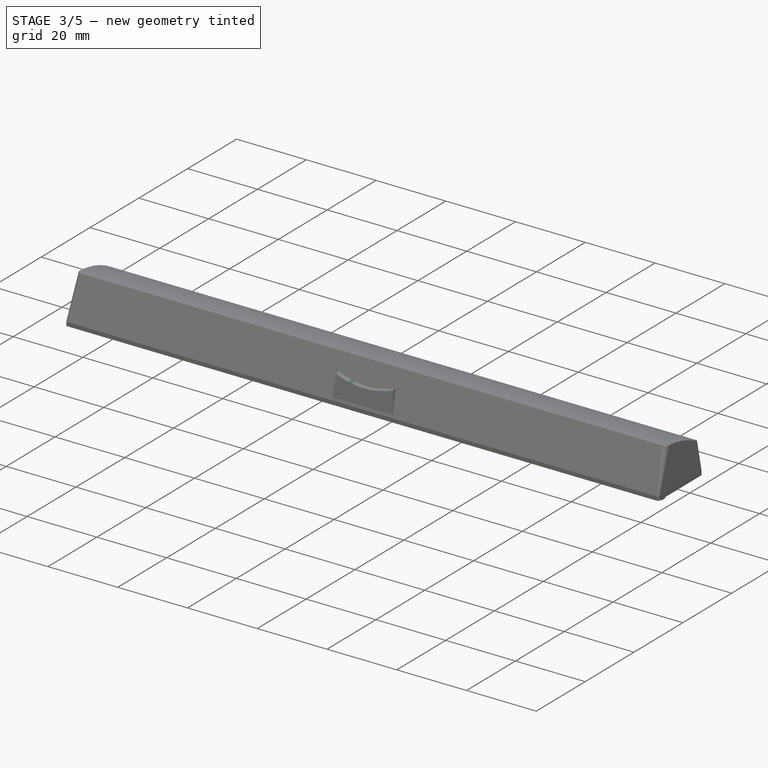
[diagram: stage 3 of 5 — iso view after this stage's code; geometry added in this stage tinted green]
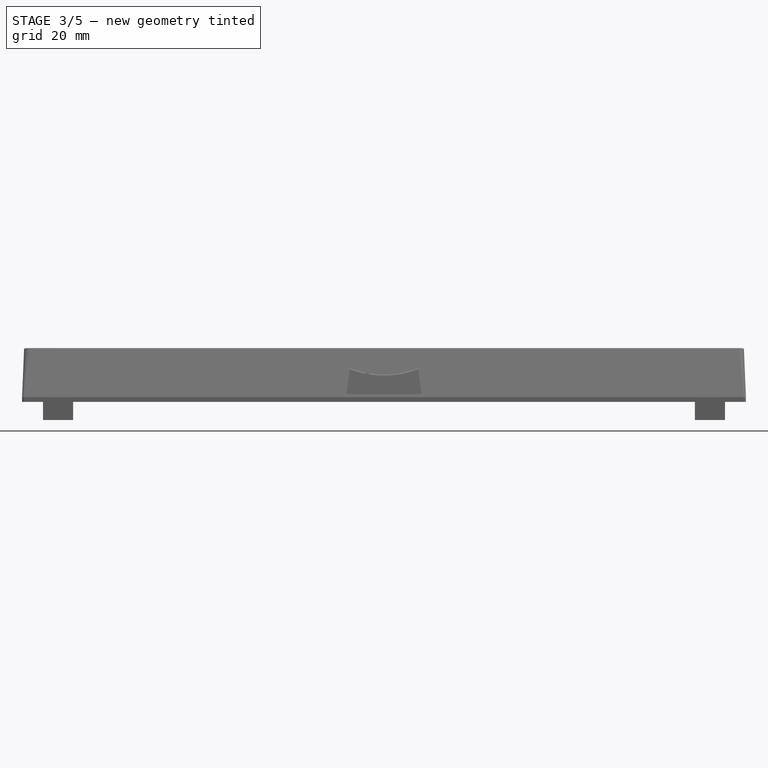
[diagram: stage 3 of 5 — front view after this stage's code; geometry added in this stage tinted green]
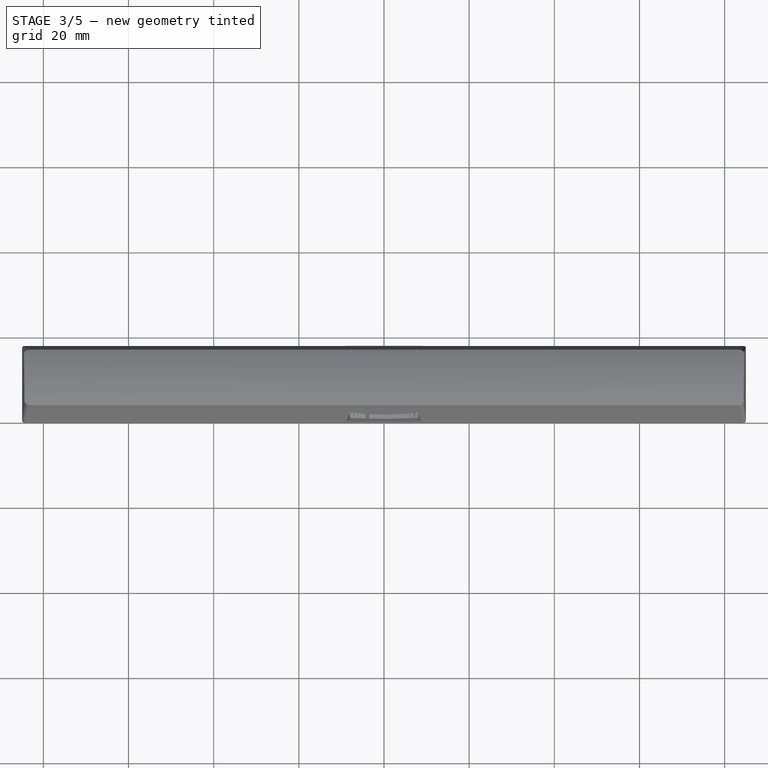
[diagram: stage 3 of 5 — top view after this stage's code; geometry added in this stage tinted green]
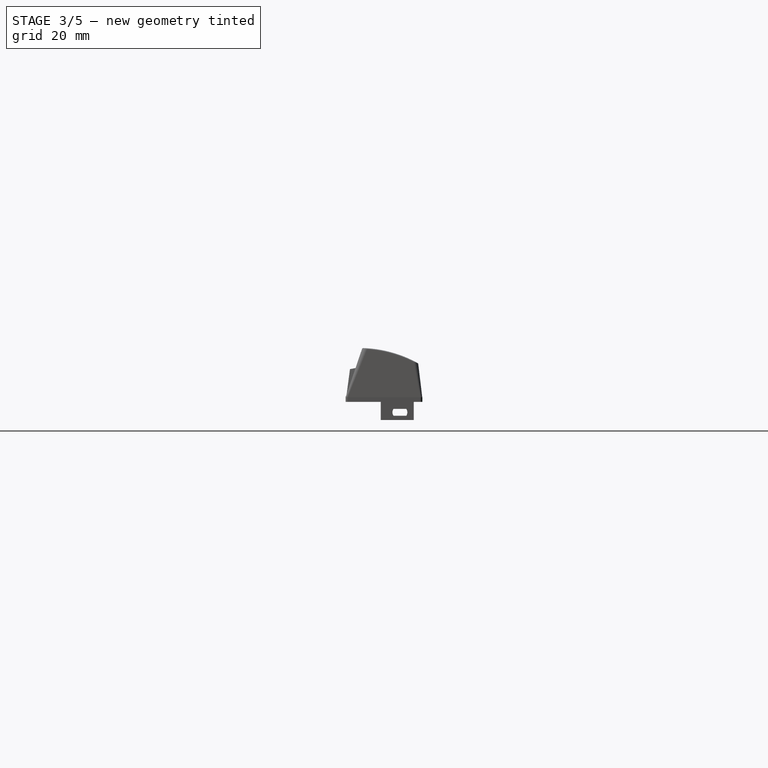
[diagram: stage 3 of 5 — right view after this stage's code; geometry added in this stage tinted green]
FEATURE [PartDesign::Draft] Draft
  Angle = 6.98598
  Base = -> Pad [Face6,Face7]
  BaseFeature = -> Pad
  NeutralPlane = -> Pad [Face1]
  SupportTransform = false
  Suppressed = false
  expr: Angle = 90 ° - <<SidesReferenceSketch>>.Constraints.SidesAngle
FEATURE [Part::DatumLine] DatumLine
  AttacherType = Attacher::AttachEngineLine
  AttachmentSupport = -> [Draft]
  MapMode = 43
  Placement = pos=(5e-16,-0.736469,7.16696) rot=(0,0.669992,0.742368;3.14159rad)
FEATURE [Part::DatumPoint] DatumPoint
  AttacherType = Attacher::AttachEnginePoint
  AttachmentSupport = -> [Draft]
  MapMode = 37
  Placement = pos=(0,1.09327,7.35498) rot=(0,0,1;0rad)
FEATURE [Part::DatumPlane] DatumPlane
  AttachmentSupport = -> [DatumLine,DatumPoint]
  MapMode = 7
  Placement = pos=(5e-16,1.09327,7.35498) rot=(1,0,0;1.6732rad)
FEATURE [Sketcher::SketchObject] Sketch002
  ArcFitTolerance = 1e-06
  AttachmentSupport = -> [DatumPlane]
  ExternalGeometry = -> [Draft]
  ExternalTypes = [0]
  FullyConstrained = true
  MakeInternals = false
  MapMode = 5
  Placement = pos=(5e-16,1.09327,7.35498) rot=(1,0,0;1.6732rad)
  _ExternalGeoVersion = 1
  expr: Constraints[4] = <<SidesReferenceSketch>>.Constraints.TopDepth
  sketch-geometry (3):
    g0: ArcOfCircle CenterX=0 CenterY=22.1655 CenterZ=0 NormalX=0 NormalY=0 NormalZ=1 AngleXU=0 Radius=23.5988 StartAngle=4.36208 EndAngle=5.0627
    g1: GeomPoint [constr] X=0 Y=-1.43321 Z=0
    g2: LineSegment StartX=-8.09875 StartY=4.4e-15 StartZ=0 EndX=8.09875 EndY=4.4e-15 EndZ=0
  constraints (8):
    c: PointOnObject(g0,g-2)
    c: Horizontal(g0,g0)
    c: PointOnObject(g1,g0)
    c: Vertical(g1,g0)
    c: DistanceY(g1,g0) = 1.43321
    c: Coincident(g2,g0)
    c: Coincident(g2,g0)
    c: Coincident(g0,g-3)
FEATURE [PartDesign::Pocket] Pocket
  BaseFeature = -> Draft
  Direction = (0,0.994762,0.102221)
  Length = 5
  Length2 = 5
  Profile = -> Sketch002
  ReferenceAxis = -> Sketch002 [N_Axis]
  Refine = true
  SideType = 2
  Suppressed = false
  Type = 1
  Type2 = 0
FEATURE [Image::ImagePlane] Atari_XE_row_1_caps_reference  label="Atari XE row 1 caps reference"
  Placement = pos=(-3.38,3.549,0) rot=(0,0,1;0rad)
  XSize = 170.54
  YSize = 65.9343
FEATURE [Sketcher::SketchObject] Sketch003  label="TopReferenceSketch"
  ArcFitTolerance = 1e-06
  ExternalTypes = [0]
  FullyConstrained = true
  MakeInternals = false
  _ExternalGeoVersion = 1
  sketch-geometry (1):
    g0: ArcOfCircle CenterX=12.0233 CenterY=13.9746 CenterZ=0 NormalX=0 NormalY=0 NormalZ=1 AngleXU=0 Radius=1.25 StartAngle=1.5708 EndAngle=3.14159
  constraints (4):
    c: Vertical(g0,g0)
    c: Horizontal(g0,g0)
    c: Radius(g0) = 1.25  'TopCornerRadius'
    c: Block(g0)
FEATURE [PartDesign::Thickness] Thickness
  Base = -> Pocket [Face1]
  BaseFeature = -> Pocket
  Intersection = false
  Join = 0
  Mode = 0
  Reversed = true
  SupportTransform = false
  Suppressed = false
  Value = 1.25
FEATURE [App::Point] Origin003
  Role = Origin
FEATURE [Sketcher::SketchObject] Sketch006
  ArcFitTolerance = 1e-06
  AttachmentSupport = -> [Origin]
  ExternalTypes = [0]
  FullyConstrained = true
  MakeInternals = false
  MapMode = 5
  Placement = pos=(0,0,0) rot=(0.57735,0.57735,0.57735;2.0944rad)
  _ExternalGeoVersion = 1
  expr: Constraints[10] = <<SidesReferenceSketch>>.Constraints.r1back
  expr: Constraints[11] = <<SidesReferenceSketch>>.Constraints.r1front
  expr: Constraints[12] = <<SidesReferenceSketch>>.Constraints.r1top
  expr: Constraints[13] = <<SidesReferenceSketch>>.Constraints.r1backangle
  expr: Constraints[8] = <<SidesReferenceSketch>>.Constraints.r1bottom
  expr: Constraints[9] = <<Data>>.FrontVerticalSectionHeight
  sketch-geometry (5):
    g0: LineSegment StartX=0 StartY=0 StartZ=0 EndX=18.0387 EndY=0 EndZ=0
    g1: LineSegment StartX=18.0387 StartY=0 StartZ=0 EndX=18.0387 EndY=1 EndZ=0
    g2: LineSegment StartX=18.0387 StartY=1 StartZ=0 EndX=14.0618 EndY=10.21 EndZ=0
    g3: LineSegment StartX=14.0618 StartY=10.21 StartZ=0 EndX=1.03301 EndY=7.70181 EndZ=0
    g4: LineSegment StartX=1.03301 StartY=7.70181 StartZ=0 EndX=0 EndY=0 EndZ=0
  constraints (14):
    c: Coincident(g-1,g0)
    c: PointOnObject(g0,g-1)
    c: Coincident(g0,g1)
    c: Vertical(g1)
    c: Coincident(g1,g2)
    c: Coincident(g2,g3)
    c: Coincident(g3,g4)
    c: Coincident(g4,g0)
    c: DistanceX(g0,g0) = 18.0387
    c: DistanceY(g1,g1) = 1
    c: Distance(g4) = 7.77077
    c: Distance(g2) = 10.032
    c: Distance(g3) = 13.268
    c: Angle(g0,g4) = 1.43747
FEATURE [PartDesign::Pad] Pad002
  Direction = (1,0,0)
  Length = 18
  Length2 = 10
  Profile = -> Sketch006
  ReferenceAxis = -> Sketch006 [N_Axis]
  SideType = 2
  Suppressed = false
  Type = 0
  Type2 = 0
  expr: Length = <<Data>>.Widthmm
FEATURE [PartDesign::Draft] Draft001
  Angle = 6.98598
  Base = -> Pad002 [Face6,Face7]
  BaseFeature = -> Pad002
  NeutralPlane = -> Pad002 [Face1]
  SupportTransform = false
  Suppressed = false
  expr: Angle = 90 ° - <<SidesReferenceSketch>>.Constraints.SidesAngle
FEATURE [Part::DatumLine] DatumLine001
  AttacherType = Attacher::AttachEngineLine
  AttachmentSupport = -> [Draft001]
  MapMode = 43
  Placement = pos=(1.8e-15,-1.39281,7.2348) rot=(0,0.636771,0.771053;3.14159rad)
FEATURE [Part::DatumPoint] DatumPoint001
  AttacherType = Attacher::AttachEnginePoint
  AttachmentSupport = -> [Draft001]
  MapMode = 37
  Placement = pos=(3.6e-15,1.03301,7.70181) rot=(0,0,1;0rad)
FEATURE [Part::DatumPlane] DatumPlane002
  AttachmentSupport = -> [DatumLine001,DatumPoint001]
  MapMode = 7
  Placement = pos=(1.8e-15,1.03301,7.70181) rot=(1,0,0;1.76099rad)
FEATURE [Sketcher::SketchObject] Sketch007
  ArcFitTolerance = 1e-06
  AttachmentSupport = -> [DatumPlane002]
  ExternalGeometry = -> [Draft001]
  ExternalTypes = [0,0]
  FullyConstrained = true
  MakeInternals = false
  MapMode = 5
  Placement = pos=(1.8e-15,1.03301,7.70181) rot=(1,0,0;1.76099rad)
  _ExternalGeoVersion = 1
  expr: Constraints[6] = <<SidesReferenceSketch>>.Constraints.TopDepth
  sketch-geometry (3):
    g0: LineSegment StartX=-8.05625 StartY=7.1e-15 StartZ=0 EndX=8.05625 EndY=8.9e-15 EndZ=0
    g1: ArcOfCircle CenterX=-7.2e-15 CenterY=21.926 CenterZ=0 NormalX=0 NormalY=0 NormalZ=1 AngleXU=0 Radius=23.3592 StartAngle=4.36027 EndAngle=5.06451
    g2: GeomPoint [constr] X=0 Y=-1.43321 Z=0
  constraints (7):
    c: Coincident(g0,g-3)
    c: Coincident(g0,g-4)
    c: Coincident(g1,g0)
    c: Coincident(g1,g0)
    c: PointOnObject(g2,g1)
    c: PointOnObject(g2,g-2)
    c: DistanceY(g2,g-1) = 1.43321
FEATURE [PartDesign::Pocket] Pocket001
  BaseFeature = -> Draft001
  Direction = (0,0.981969,0.189044)
  Length = 5
  Length2 = 5
  Profile = -> Sketch007
  ReferenceAxis = -> Sketch007 [N_Axis]
  Refine = true
  SideType = 2
  Suppressed = false
  Type = 1
  Type2 = 0
FEATURE [PartDesign::Thickness] Thickness001
  Base = -> Pocket001 [Face1]
  BaseFeature = -> Pocket001
  Intersection = false
  Join = 0
  Mode = 0
  Reversed = true
  SupportTransform = false
  Suppressed = false
  Value = 1.25
FEATURE [Sketcher::SketchObject] Sketch008
  ArcFitTolerance = 1e-06
  AttachmentSupport = -> [Origin]
  ExternalGeometry = -> [Thickness]
  ExternalTypes = [0,0]
  FullyConstrained = true
  MakeInternals = false
  MapMode = 5
  _ExternalGeoVersion = 1
  sketch-geometry (13):
    g0: Circle CenterX=1.4e-15 CenterY=8.94766 CenterZ=0 NormalX=0 NormalY=0 NormalZ=1 AngleXU=0 Radius=2.8
    g1: LineSegment StartX=-0.575 StartY=11.0477 StartZ=0 EndX=0.575 EndY=11.0477 EndZ=0
    g2: LineSegment StartX=0.575 StartY=11.0477 StartZ=0 EndX=0.575 EndY=9.52266 EndZ=0
    g3: LineSegment StartX=0.575 StartY=9.52266 StartZ=0 EndX=2.1 EndY=9.52266 EndZ=0
    g4: LineSegment StartX=2.1 StartY=9.52266 StartZ=0 EndX=2.1 EndY=8.37266 EndZ=0
    g5: LineSegment StartX=2.1 StartY=8.37266 StartZ=0 EndX=0.575 EndY=8.37266 EndZ=0
    g6: LineSegment StartX=0.575 StartY=8.37266 StartZ=0 EndX=0.575 EndY=6.84766 EndZ=0
    g7: LineSegment StartX=0.575 StartY=6.84766 StartZ=0 EndX=-0.575 EndY=6.84766 EndZ=0
    g8: LineSegment StartX=-0.575 StartY=6.84766 StartZ=0 EndX=-0.575 EndY=8.37266 EndZ=0
    g9: LineSegment StartX=-0.575 StartY=8.37266 StartZ=0 EndX=-2.1 EndY=8.37266 EndZ=0
    g10: LineSegment StartX=-2.1 StartY=8.37266 StartZ=0 EndX=-2.1 EndY=9.52266 EndZ=0
    g11: LineSegment StartX=-2.1 StartY=9.52266 StartZ=0 EndX=-0.575 EndY=9.52266 EndZ=0
    g12: LineSegment StartX=-0.575 StartY=9.52266 StartZ=0 EndX=-0.575 EndY=11.0477 EndZ=0
  constraints (37):
    c: Symmetric(g-3,g-4,g0)
    c: Diameter(g0) = 5.6
    c: Horizontal(g1)
    c: Coincident(g1,g2)
    c: Vertical(g2)
    c: Coincident(g2,g3)
    c: Horizontal(g3)
    c: Coincident(g3,g4)
    c: Vertical(g4)
    c: Coincident(g4,g5)
    c: Coincident(g5,g6)
    c: Vertical(g6)
    c: Coincident(g6,g7)
    c: Horizontal(g7)
    c: Coincident(g7,g8)
    c: Vertical(g8)
    c: Coincident(g8,g9)
    c: Horizontal(g9)
    c: Coincident(g9,g10)
    c: Vertical(g10)
    c: Coincident(g10,g11)
    c: Horizontal(g11)
    c: Coincident(g11,g12)
    c: Coincident(g12,g1)
    c: Vertical(g12)
    c: Horizontal(g5)
    c: Vertical(g2,g5)
    c: Vertical(g11,g8)
    c: Horizontal(g11,g2)
    c: Horizontal(g8,g5)
    c: Equal(g2,g3)
    c: Equal(g3,g9)
    c: Equal(g9,g8)
    c: Equal(g1,g4)
    c: Symmetric(g8,g2,g0)
    c: DistanceX(g10,g3) = 4.2
    c: DistanceX(g1,g1) = 1.15
FEATURE [PartDesign::Pad] Pad003
  BaseFeature = -> Thickness001
  Direction = (0,0,1)
  Length = 10
  Length2 = 10
  Profile = -> Sketch008
  ReferenceAxis = -> Sketch008 [N_Axis]
  SideType = 0
  Suppressed = false
  Type = 3
  Type2 = 0
  UpToFace = -> Thickness001 [Face12]
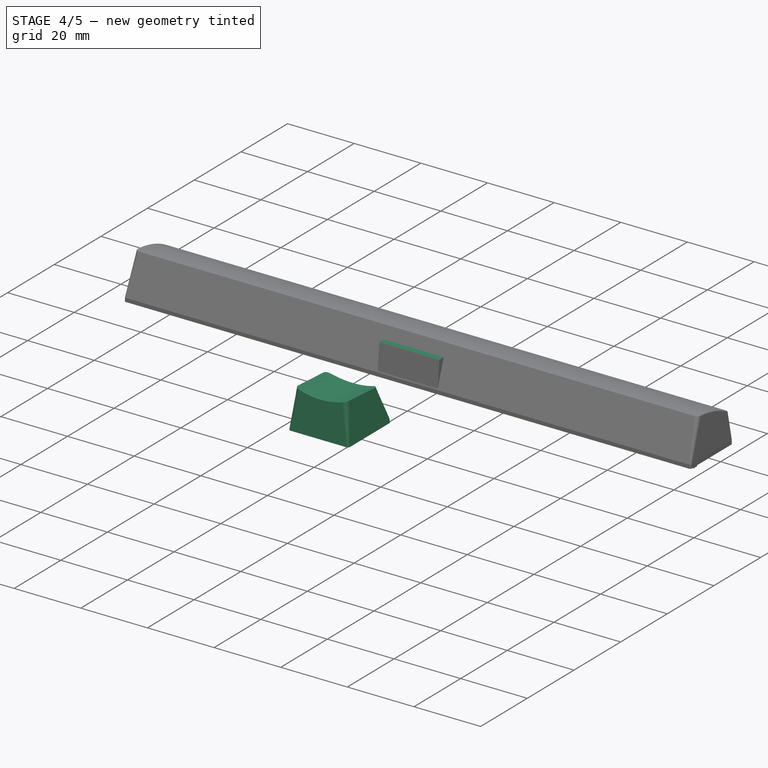
[diagram: stage 4 of 5 — iso view after this stage's code; geometry added in this stage tinted green]
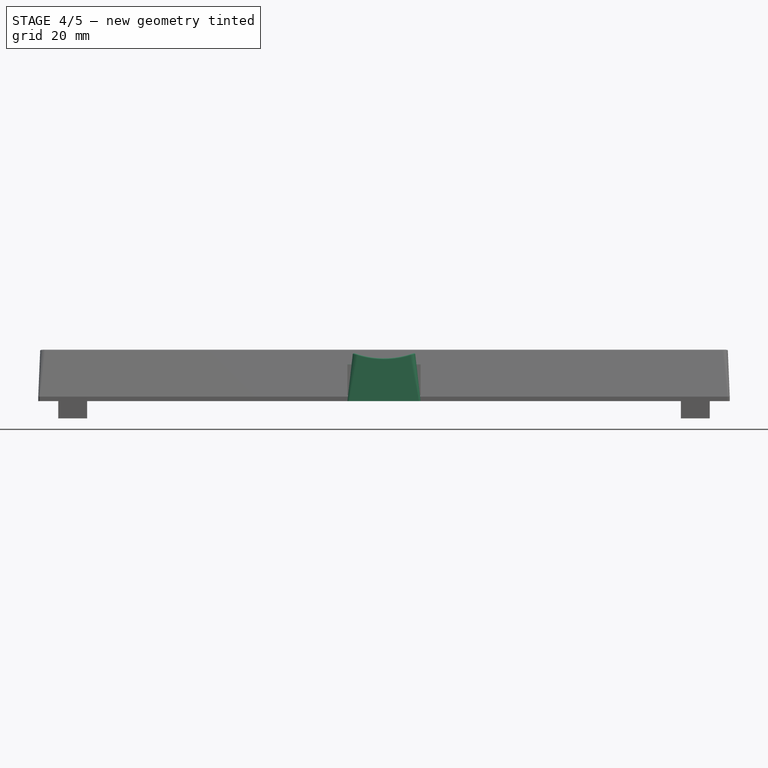
[diagram: stage 4 of 5 — front view after this stage's code; geometry added in this stage tinted green]
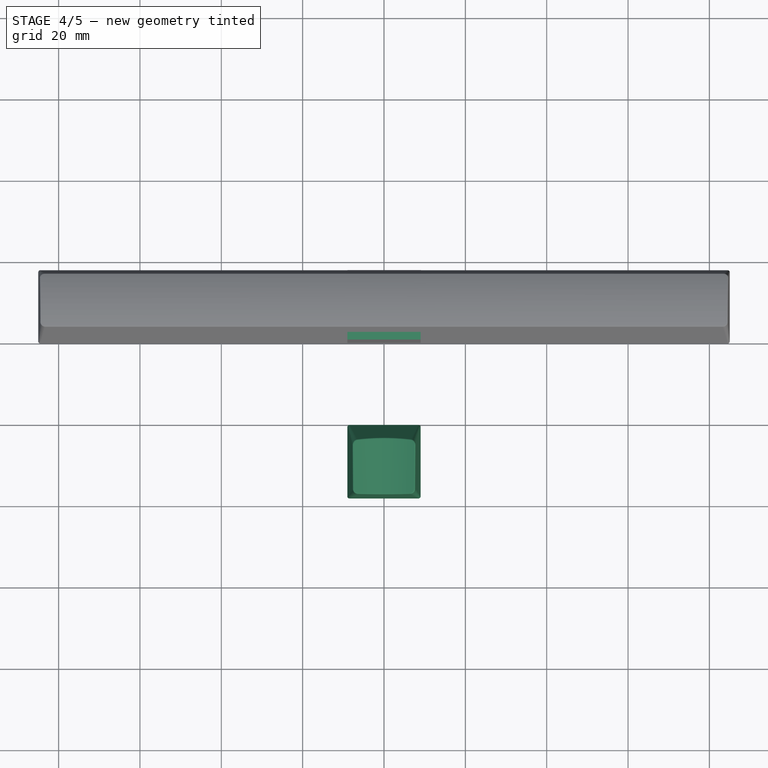
[diagram: stage 4 of 5 — top view after this stage's code; geometry added in this stage tinted green]
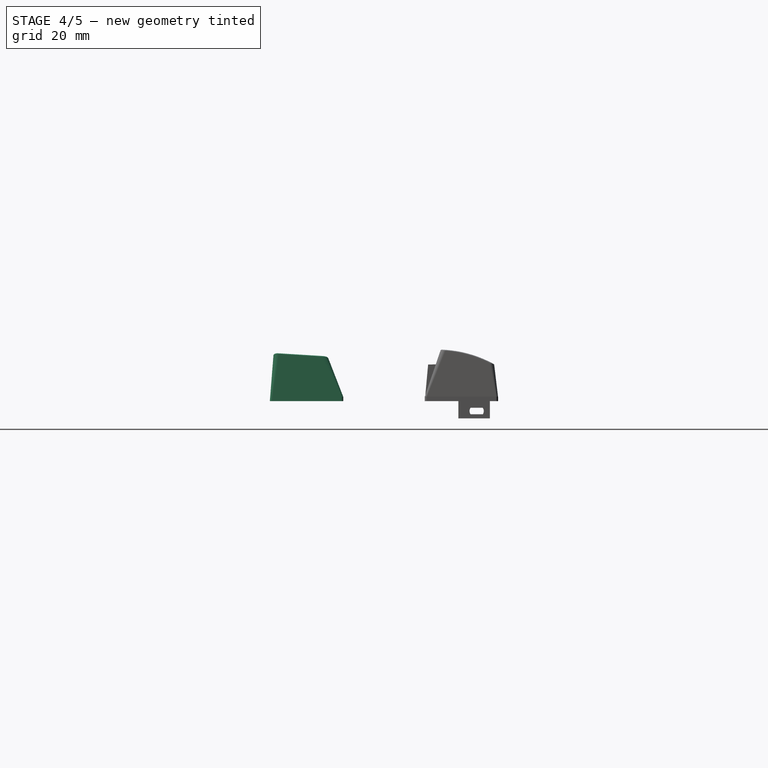
[diagram: stage 4 of 5 — right view after this stage's code; geometry added in this stage tinted green]
FEATURE [App::Point] Origin005  label="Origin006"
  Role = Origin
FEATURE [Sketcher::SketchObject] Sketch009
  ArcFitTolerance = 1e-06
  AttachmentSupport = -> [Origin]
  ExternalTypes = [0]
  FullyConstrained = true
  MakeInternals = false
  MapMode = 5
  Placement = pos=(0,0,0) rot=(0.57735,0.57735,0.57735;2.0944rad)
  _ExternalGeoVersion = 1
  expr: Constraints[10] = <<SidesReferenceSketch>>.Constraints.R3back
  expr: Constraints[11] = <<SidesReferenceSketch>>.Constraints.R3front
  expr: Constraints[12] = <<SidesReferenceSketch>>.Constraints.R3top
  expr: Constraints[13] = <<SidesReferenceSketch>>.Constraints.R3backAngle
  expr: Constraints[8] = <<SidesReferenceSketch>>.Constraints.R3bottom
  expr: Constraints[9] = <<Data>>.FrontVerticalSectionHeight
  sketch-geometry (5):
    g0: LineSegment StartX=0 StartY=0 StartZ=0 EndX=17.964 EndY=0 EndZ=0
    g1: LineSegment StartX=17.964 StartY=0 StartZ=0 EndX=17.964 EndY=1 EndZ=0
    g2: LineSegment StartX=17.964 StartY=1 StartZ=0 EndX=13.8955 EndY=9.19727 EndZ=0
    g3: LineSegment StartX=13.8955 StartY=9.19727 StartZ=0 EndX=0.814979 EndY=8.99035 EndZ=0
    g4: LineSegment StartX=0.814979 StartY=8.99035 StartZ=0 EndX=0 EndY=0 EndZ=0
  constraints (14):
    c: Coincident(g-1,g0)
    c: PointOnObject(g0,g-1)
    c: Coincident(g0,g1)
    c: Vertical(g1)
    c: Coincident(g1,g2)
    c: Coincident(g2,g3)
    c: Coincident(g3,g4)
    c: Coincident(g4,g0)
    c: DistanceX(g0,g0) = 17.964
    c: DistanceY(g1,g1) = 1
    c: Distance(g4) = 9.02721
    c: Distance(g2) = 9.15142
    c: Distance(g3) = 13.0821
    c: Angle(g0,g4) = 1.48039
FEATURE [PartDesign::Pad] Pad004
  Direction = (1,0,0)
  Length = 18
  Length2 = 10
  Profile = -> Sketch009
  ReferenceAxis = -> Sketch009 [N_Axis]
  SideType = 2
  Suppressed = false
  Type = 0
  Type2 = 0
  expr: Length = <<Data>>.Widthmm
FEATURE [App::Point] Origin007  label="Origin009"
  Role = Origin
FEATURE [Sketcher::SketchObject] Sketch012
  ArcFitTolerance = 1e-06
  AttachmentSupport = -> [Origin]
  ExternalTypes = [0]
  FullyConstrained = true
  MakeInternals = false
  MapMode = 5
  Placement = pos=(0,0,0) rot=(0.57735,0.57735,0.57735;2.0944rad)
  _ExternalGeoVersion = 1
  expr: Constraints[10] = <<SidesReferenceSketch>>.Constraints.R4back
  expr: Constraints[11] = <<SidesReferenceSketch>>.Constraints.R4front
  expr: Constraints[12] = <<SidesReferenceSketch>>.Constraints.R4top
  expr: Constraints[13] = <<SidesReferenceSketch>>.Constraints.R4backAngle
  expr: Constraints[8] = <<SidesReferenceSketch>>.Constraints.R4bottom
  expr: Constraints[9] = <<Data>>.FrontVerticalSectionHeight
  sketch-geometry (5):
    g0: LineSegment StartX=1e-16 StartY=0 StartZ=0 EndX=18.0663 EndY=0 EndZ=0
    g1: LineSegment StartX=18.0663 StartY=0 StartZ=0 EndX=18.0663 EndY=1 EndZ=0
    g2: LineSegment StartX=18.0663 StartY=1 StartZ=0 EndX=14.1487 EndY=11.1059 EndZ=0
    g3: LineSegment StartX=14.1487 StartY=11.1059 StartZ=0 EndX=0.951035 EndY=11.9533 EndZ=0
    g4: LineSegment StartX=0.951035 StartY=11.9533 StartZ=0 EndX=1e-16 EndY=0 EndZ=0
  constraints (14):
    c: Coincident(g-1,g0)
    c: PointOnObject(g0,g-1)
    c: Coincident(g0,g1)
    c: Vertical(g1)
    c: Coincident(g1,g2)
    c: Coincident(g2,g3)
    c: Coincident(g3,g4)
    c: Coincident(g4,g0)
    c: DistanceX(g0,g0) = 18.0663
    c: DistanceY(g1,g1) = 1
    c: Distance(g4) = 11.9911
    c: Distance(g2) = 10.8387
    c: Distance(g3) = 13.2248
    c: Angle(g0,g4) = 1.4914
FEATURE [PartDesign::Pad] Pad006
  Direction = (1,0,0)
  Length = 18
  Length2 = 10
  Profile = -> Sketch012
  ReferenceAxis = -> Sketch012 [N_Axis]
  SideType = 2
  Suppressed = false
  Type = 0
  Type2 = 0
  expr: Length = <<SidesReferenceSketch>>.Constraints.BaseWidth1U
FEATURE [PartDesign::Draft] Draft003
  Angle = 6.54146
  Base = -> Pad006 [Face7,Face6]
  BaseFeature = -> Pad006
  NeutralPlane = -> Pad006 [Face1]
  SupportTransform = false
  Suppressed = false
  expr: Angle = atan((<<SidesReferenceSketch>>.Constraints.BaseWidth1U - <<SidesReferenceSketch>>.Constraints.Top1UWidth) / 2 / <<SidesReferenceSketch>>.Constraints.R4back)
FEATURE [Part::DatumLine] DatumLine003
  AttacherType = Attacher::AttachEngineLine
  AttachmentSupport = -> [Draft003]
  MapMode = 43
  Placement = pos=(-1.1e-15,0.76826,11.965) rot=(0,0.72941,0.684077;3.14159rad)
FEATURE [Part::DatumPoint] DatumPoint003
  AttacherType = Attacher::AttachEnginePoint
  AttachmentSupport = -> [Draft003]
  MapMode = 37
  Placement = pos=(4e-16,0.951035,11.9533) rot=(0,0,1;0rad)
FEATURE [Part::DatumPlane] DatumPlane004
  AttachmentSupport = -> [DatumLine003,DatumPoint003]
  MapMode = 7
  Placement = pos=(-1.1e-15,0.951035,11.9533) rot=(1,0,0;1.50668rad)
FEATURE [Sketcher::SketchObject] Sketch013
  ArcFitTolerance = 1e-06
  AttachmentSupport = -> [DatumPlane004]
  ExternalGeometry = -> [Draft003]
  ExternalTypes = [0,0]
  FullyConstrained = true
  MakeInternals = false
  MapMode = 5
  Placement = pos=(-1.1e-15,0.951035,11.9533) rot=(1,0,0;1.50668rad)
  _ExternalGeoVersion = 1
  expr: Constraints[4] = <<SidesReferenceSketch>>.Constraints.TopDepth
  sketch-geometry (3):
    g0: LineSegment StartX=-7.7265 StartY=8.9e-15 StartZ=0 EndX=7.7265 EndY=7.1e-15 EndZ=0
    g1: ArcOfCircle CenterX=3.9e-15 CenterY=20.1104 CenterZ=0 NormalX=0 NormalY=0 NormalZ=1 AngleXU=0 Radius=21.5436 StartAngle=4.34557 EndAngle=5.0792
    g2: GeomPoint [constr] X=0 Y=-1.43321 Z=0
  constraints (7):
    c: Coincident(g1,g0)
    c: Coincident(g1,g0)
    c: PointOnObject(g2,g1)
    c: PointOnObject(g2,g-2)
    c: DistanceY(g2,g-1) = 1.43321
    c: Coincident(g0,g-4)
    c: Coincident(g-3,g0)
FEATURE [PartDesign::Pocket] Pocket003
  BaseFeature = -> Draft003
  Direction = (0,0.997945,-0.0640769)
  Length = 5
  Length2 = 5
  Profile = -> Sketch013
  ReferenceAxis = -> Sketch013 [N_Axis]
  Refine = true
  SideType = 2
  Suppressed = false
  Type = 1
  Type2 = 0
FEATURE [PartDesign::Thickness] Thickness003
  Base = -> Pocket003 [Face1]
  BaseFeature = -> Pocket003
  Intersection = false
  Join = 0
  Mode = 0
  Reversed = true
  SupportTransform = false
  Suppressed = false
  Value = 1.25
FEATURE [Sketcher::SketchObject] Sketch014
  ArcFitTolerance = 1e-06
  AttachmentSupport = -> [Origin]
  ExternalGeometry = -> [Thickness]
  ExternalTypes = [0,0]
  FullyConstrained = true
  MakeInternals = false
  MapMode = 5
  _ExternalGeoVersion = 1
  sketch-geometry (13):
    g0: Circle CenterX=1.4e-15 CenterY=8.94766 CenterZ=0 NormalX=0 NormalY=0 NormalZ=1 AngleXU=0 Radius=2.8
    g1: LineSegment StartX=-0.575 StartY=11.0477 StartZ=0 EndX=0.575 EndY=11.0477 EndZ=0
    g2: LineSegment StartX=0.575 StartY=11.0477 StartZ=0 EndX=0.575 EndY=9.52266 EndZ=0
    g3: LineSegment StartX=0.575 StartY=9.52266 StartZ=0 EndX=2.1 EndY=9.52266 EndZ=0
    g4: LineSegment StartX=2.1 StartY=9.52266 StartZ=0 EndX=2.1 EndY=8.37266 EndZ=0
    g5: LineSegment StartX=2.1 StartY=8.37266 StartZ=0 EndX=0.575 EndY=8.37266 EndZ=0
    g6: LineSegment StartX=0.575 StartY=8.37266 StartZ=0 EndX=0.575 EndY=6.84766 EndZ=0
    g7: LineSegment StartX=0.575 StartY=6.84766 StartZ=0 EndX=-0.575 EndY=6.84766 EndZ=0
    g8: LineSegment StartX=-0.575 StartY=6.84766 StartZ=0 EndX=-0.575 EndY=8.37266 EndZ=0
    g9: LineSegment StartX=-0.575 StartY=8.37266 StartZ=0 EndX=-2.1 EndY=8.37266 EndZ=0
    g10: LineSegment StartX=-2.1 StartY=8.37266 StartZ=0 EndX=-2.1 EndY=9.52266 EndZ=0
    g11: LineSegment StartX=-2.1 StartY=9.52266 StartZ=0 EndX=-0.575 EndY=9.52266 EndZ=0
    g12: LineSegment StartX=-0.575 StartY=9.52266 StartZ=0 EndX=-0.575 EndY=11.0477 EndZ=0
  constraints (37):
    c: Symmetric(g-3,g-4,g0)
    c: Diameter(g0) = 5.6
    c: Horizontal(g1)
    c: Coincident(g1,g2)
    c: Vertical(g2)
    c: Coincident(g2,g3)
    c: Horizontal(g3)
    c: Coincident(g3,g4)
    c: Vertical(g4)
    c: Coincident(g4,g5)
    c: Coincident(g5,g6)
    c: Vertical(g6)
    c: Coincident(g6,g7)
    c: Horizontal(g7)
    c: Coincident(g7,g8)
    c: Vertical(g8)
    c: Coincident(g8,g9)
    c: Horizontal(g9)
    c: Coincident(g9,g10)
    c: Vertical(g10)
    c: Coincident(g10,g11)
    c: Horizontal(g11)
    c: Coincident(g11,g12)
    c: Coincident(g12,g1)
    c: Vertical(g12)
    c: Horizontal(g5)
    c: Vertical(g2,g5)
    c: Vertical(g11,g8)
    c: Horizontal(g11,g2)
    c: Horizontal(g8,g5)
    c: Equal(g2,g3)
    c: Equal(g3,g9)
    c: Equal(g9,g8)
    c: Equal(g1,g4)
    c: Symmetric(g8,g2,g0)
    c: DistanceX(g10,g3) = 4.2
    c: DistanceX(g1,g1) = 1.15
FEATURE [PartDesign::Pad] Pad007
  BaseFeature = -> Thickness003
  Direction = (0,0,1)
  Length = 10
  Length2 = 10
  Profile = -> Sketch014
  ReferenceAxis = -> Sketch014 [N_Axis]
  SideType = 0
  Suppressed = false
  Type = 3
  Type2 = 0
  UpToFace = -> Thickness003 [Face13]
FEATURE [PartDesign::Body] Body003  label="R4"
  AllowCompound = false
  Group = -> [Sketch012,Pad006,Draft003,DatumLine003,DatumPoint003,DatumPlane004,Sketch013,Pocket003,Thickness003,Sketch014,Pad007]
  Origin = -> Origin006
  Placement = pos=(0,-38.1,0) rot=(0,0,1;0rad)
  Tip = -> Pad007
FEATURE [Part::Fillet] Fillet003  label="R4 fillets"
  Base = -> Body003
  EdgeLinks = -> Body003 [Edge1,Edge3,Edge4,Edge5,Edge6,Edge7,Edge15,Edge16,Edge17,Edge18]
  Edges = 10 edges: [Edge1 r1=1.25 r2=0.5,Edge3 r1=1.25 r2=0.5,Edge4 r=0.25,Edge5 r=0.25,Edge6 r1=0.5 r2=1.25,Edge7 r=0.5,Edge15 r=0.25,Edge16 r1=0.5 r2=1.25,Edge17 r=0.5,Edge18 r=0.25]
FEATURE [PartDesign::SubShapeBinder] Binder
  BindCopyOnChange = 0
  BindMode = 0
  ClaimChildren = false
  Context = -> Body001 [Binder.]
  Fuse = false
  MakeFace = true
  OffsetFill = false
  OffsetIntersection = false
  OffsetJoinType = 0
  OffsetOpenResult = false
  PartialLoad = false
  Placement = pos=(11.938,0,0) rot=(0,0,1;0rad)
  Refine = true
  Relative = true
  Support = -> [Sketch008]
  _Version = 2
FEATURE [PartDesign::SubShapeBinder] Binder001
  BindCopyOnChange = 0
  BindMode = 0
  ClaimChildren = false
  Context = -> Body001 [Binder001.]
  Fuse = false
  MakeFace = true
  OffsetFill = false
  OffsetIntersection = false
  OffsetJoinType = 0
  OffsetOpenResult = false
  PartialLoad = false
  Placement = pos=(-11.938,0,0) rot=(0,0,1;0rad)
  Refine = true
  Relative = true
  Support = -> [Sketch008]
  _Version = 2
FEATURE [PartDesign::Pad] Pad008
  BaseFeature = -> Pad003
  Direction = (0,0,1)
  Length = 10
  Length2 = 10
  Profile = -> Binder001
  SideType = 0
  Suppressed = true
  Type = 3
  Type2 = 0
  UpToFace = -> Pad003 [Face12]
  expr: Suppressed = <<Data>>.Widthmm < 1.75 * 19.05
FEATURE [PartDesign::Pad] Pad009
  BaseFeature = -> Pad008
  Direction = (0,0,1)
  Length = 10
  Length2 = 10
  Profile = -> Binder
  SideType = 0
  Suppressed = true
  Type = 3
  Type2 = 0
  UpToFace = -> Pad008 [?Face12]
  expr: Suppressed = <<Data>>.Widthmm < 1.75 * 19.05
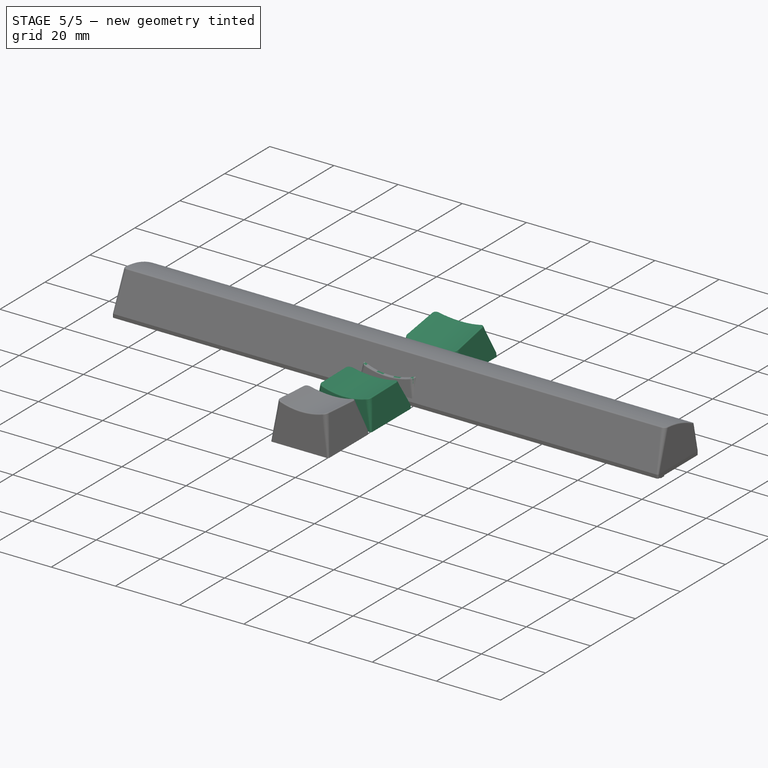
[diagram: stage 5 of 5 — iso view after this stage's code; geometry added in this stage tinted green]
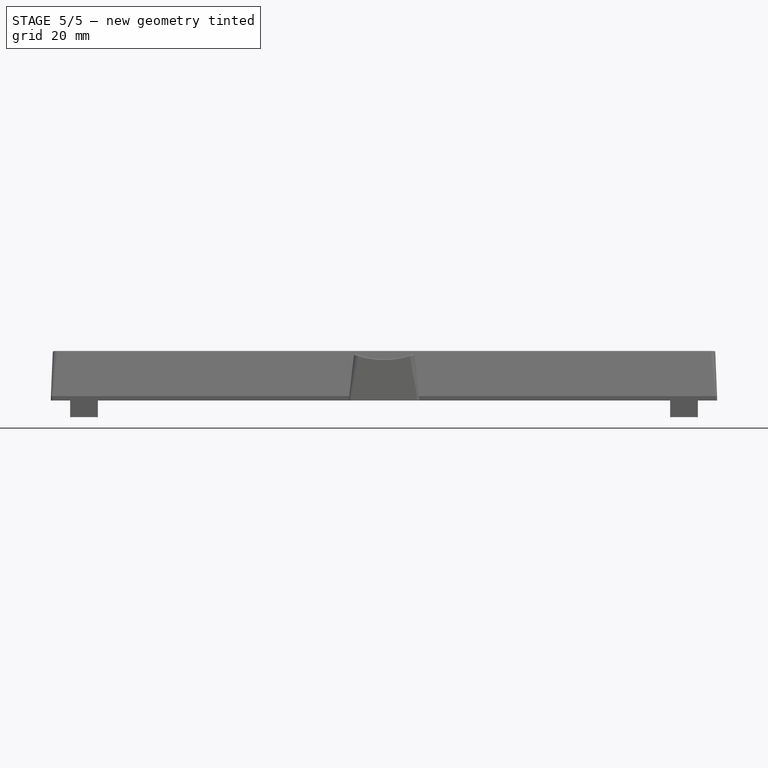
[diagram: stage 5 of 5 — front view after this stage's code; geometry added in this stage tinted green]
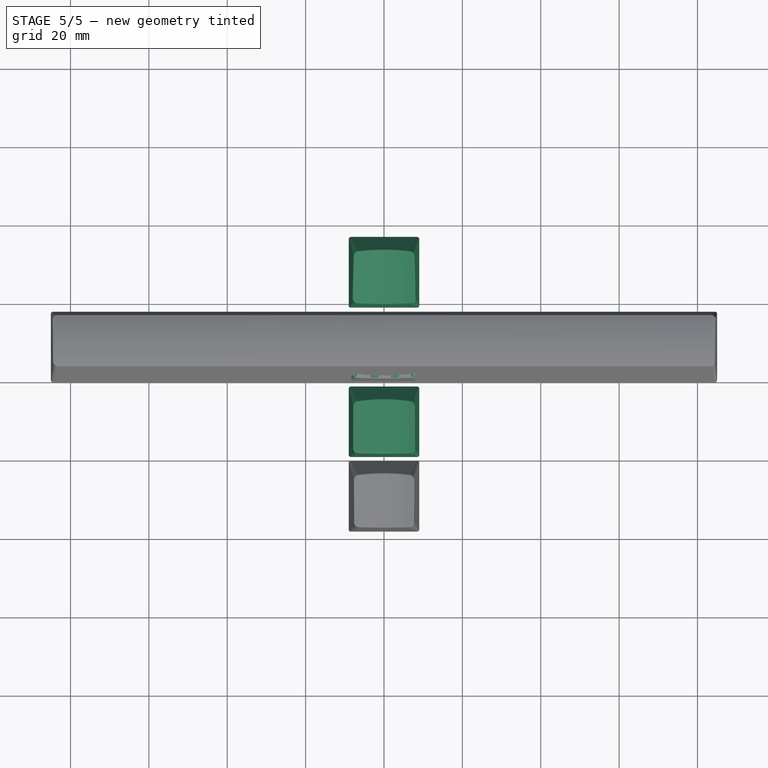
[diagram: stage 5 of 5 — top view after this stage's code; geometry added in this stage tinted green]
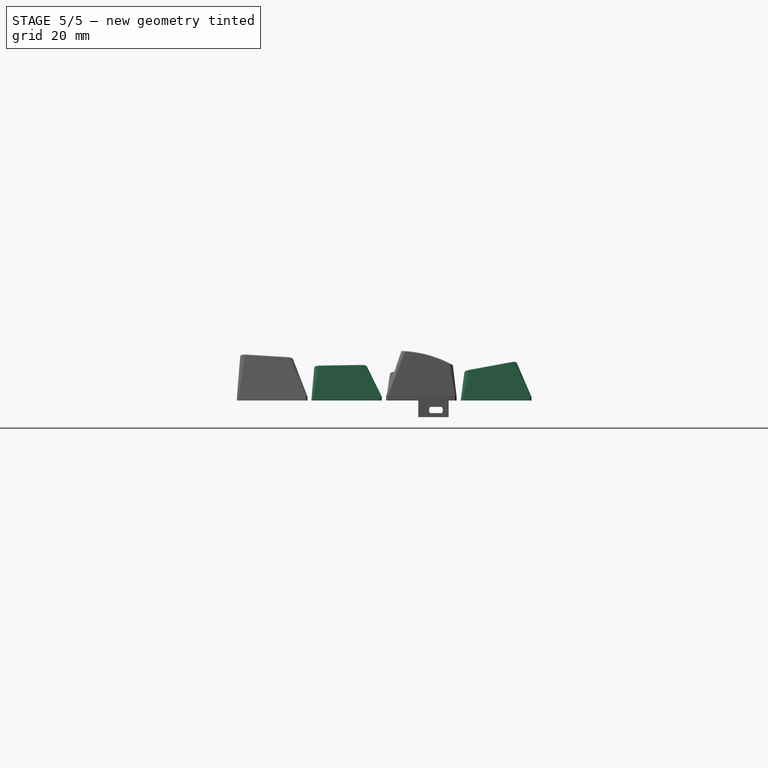
[diagram: stage 5 of 5 — right view after this stage's code; geometry added in this stage tinted green]
FEATURE [Image::ImagePlane] Atari_XE_caps_underside_reference  label="Atari XE caps underside reference"
  XSize = 174.964
  YSize = 68.4108
FEATURE [Sketcher::SketchObject] Sketch004  label="BottomReferenceSketch"
  ArcFitTolerance = 1e-06
  AttachmentSupport = -> [Origin]
  ExternalTypes = [0]
  FullyConstrained = true
  MakeInternals = false
  MapMode = 5
  _ExternalGeoVersion = 1
  sketch-geometry (8):
    g0: LineSegment [constr] StartX=-29.3473 StartY=4.2045 StartZ=0 EndX=-11.4279 EndY=4.34762 EndZ=0
    g1: LineSegment [constr] StartX=-11.4279 StartY=4.34762 StartZ=0 EndX=-11.2848 EndY=-13.5718 EndZ=0
    g2: LineSegment [constr] StartX=-11.2848 StartY=-13.5718 StartZ=0 EndX=-29.2042 EndY=-13.7149 EndZ=0
    g3: LineSegment [constr] StartX=-29.2042 StartY=-13.7149 StartZ=0 EndX=-29.3473 EndY=4.2045 EndZ=0
    g4: LineSegment [constr] StartX=-28.5096 StartY=3.32559 StartZ=0 EndX=-12.3384 EndY=3.42082 EndZ=0
    g5: LineSegment [constr] StartX=-12.3384 StartY=3.42082 StartZ=0 EndX=-12.2432 EndY=-12.7503 EndZ=0
    g6: LineSegment [constr] StartX=-12.2432 StartY=-12.7503 StartZ=0 EndX=-28.4143 EndY=-12.8455 EndZ=0
    g7: LineSegment [constr] StartX=-28.4143 StartY=-12.8455 StartZ=0 EndX=-28.5096 EndY=3.32559 EndZ=0
  constraints (20):
    c: Coincident(g0,g1)
    c: Coincident(g1,g2)
    c: Coincident(g2,g3)
    c: Coincident(g3,g0)
    c: Coincident(g4,g5)
    c: Coincident(g5,g6)
    c: Coincident(g6,g7)
    c: Coincident(g7,g4)
    c: Perpendicular(g1,g0)
    c: Perpendicular(g2,g1)
    c: Perpendicular(g0,g3)
    c: Perpendicular(g5,g4)
    c: Perpendicular(g6,g5)
    c: Perpendicular(g7,g6)
    c: Distance(g0) = 17.92  'Under1UWidth'
    c: Equal(g0,g3)
    c: Equal(g4,g7)
    c: Distance(g4) = 16.1714  'Under1UInnerWidth'
    c: Block(g4)
    c: Block(g0)
FEATURE [Sketcher::SketchObject] Sketch005
  ArcFitTolerance = 1e-06
  AttachmentSupport = -> [Origin]
  ExternalGeometry = -> [Thickness]
  ExternalTypes = [0,0]
  FullyConstrained = true
  MakeInternals = false
  MapMode = 5
  _ExternalGeoVersion = 1
  sketch-geometry (13):
    g0: Circle CenterX=1.4e-15 CenterY=8.94766 CenterZ=0 NormalX=0 NormalY=0 NormalZ=1 AngleXU=0 Radius=2.8
    g1: LineSegment StartX=-0.575 StartY=11.0477 StartZ=0 EndX=0.575 EndY=11.0477 EndZ=0
    g2: LineSegment StartX=0.575 StartY=11.0477 StartZ=0 EndX=0.575 EndY=9.52266 EndZ=0
    g3: LineSegment StartX=0.575 StartY=9.52266 StartZ=0 EndX=2.1 EndY=9.52266 EndZ=0
    g4: LineSegment StartX=2.1 StartY=9.52266 StartZ=0 EndX=2.1 EndY=8.37266 EndZ=0
    g5: LineSegment StartX=2.1 StartY=8.37266 StartZ=0 EndX=0.575 EndY=8.37266 EndZ=0
    g6: LineSegment StartX=0.575 StartY=8.37266 StartZ=0 EndX=0.575 EndY=6.84766 EndZ=0
    g7: LineSegment StartX=0.575 StartY=6.84766 StartZ=0 EndX=-0.575 EndY=6.84766 EndZ=0
    g8: LineSegment StartX=-0.575 StartY=6.84766 StartZ=0 EndX=-0.575 EndY=8.37266 EndZ=0
    g9: LineSegment StartX=-0.575 StartY=8.37266 StartZ=0 EndX=-2.1 EndY=8.37266 EndZ=0
    g10: LineSegment StartX=-2.1 StartY=8.37266 StartZ=0 EndX=-2.1 EndY=9.52266 EndZ=0
    g11: LineSegment StartX=-2.1 StartY=9.52266 StartZ=0 EndX=-0.575 EndY=9.52266 EndZ=0
    g12: LineSegment StartX=-0.575 StartY=9.52266 StartZ=0 EndX=-0.575 EndY=11.0477 EndZ=0
  constraints (37):
    c: Symmetric(g-3,g-4,g0)
    c: Diameter(g0) = 5.6
    c: Horizontal(g1)
    c: Coincident(g1,g2)
    c: Vertical(g2)
    c: Coincident(g2,g3)
    c: Horizontal(g3)
    c: Coincident(g3,g4)
    c: Vertical(g4)
    c: Coincident(g4,g5)
    c: Coincident(g5,g6)
    c: Vertical(g6)
    c: Coincident(g6,g7)
    c: Horizontal(g7)
    c: Coincident(g7,g8)
    c: Vertical(g8)
    c: Coincident(g8,g9)
    c: Horizontal(g9)
    c: Coincident(g9,g10)
    c: Vertical(g10)
    c: Coincident(g10,g11)
    c: Horizontal(g11)
    c: Coincident(g11,g12)
    c: Coincident(g12,g1)
    c: Vertical(g12)
    c: Horizontal(g5)
    c: Vertical(g2,g5)
    c: Vertical(g11,g8)
    c: Horizontal(g11,g2)
    c: Horizontal(g8,g5)
    c: Equal(g2,g3)
    c: Equal(g3,g9)
    c: Equal(g9,g8)
    c: Equal(g1,g4)
    c: Symmetric(g8,g2,g0)
    c: DistanceX(g10,g3) = 4.2
    c: DistanceX(g1,g1) = 1.15
FEATURE [PartDesign::Pad] Pad001
  BaseFeature = -> Thickness
  Direction = (0,0,1)
  Length = 10
  Length2 = 10
  Profile = -> Sketch005
  ReferenceAxis = -> Sketch005 [N_Axis]
  SideType = 0
  Suppressed = false
  Type = 3
  Type2 = 0
  UpToFace = -> Thickness [Face13]
FEATURE [PartDesign::Body] Body  label="R2"
  AllowCompound = false
  Group = -> [Sketch001,Pad,Draft,DatumLine,DatumPoint,DatumPlane,Sketch002,Pocket,Thickness,Sketch005,Pad001]
  Origin = -> Origin
  Tip = -> Pad001
FEATURE [Part::Fillet] Fillet  label="R2 fillets"
  Base = -> Body
  EdgeLinks = -> Body [Edge1,Edge3,Edge4,Edge5,Edge6,Edge7,Edge15,Edge16,Edge17,Edge18]
  Edges = 10 edges: [Edge1 r1=1.25 r2=0.5,Edge3 r1=1.25 r2=0.5,Edge4 r=0.25,Edge5 r=0.25,Edge6 r1=0.5 r2=1.25,Edge7 r=0.5,Edge15 r=0.25,Edge16 r1=0.5 r2=1.25,Edge17 r=0.5,Edge18 r=0.25]
FEATURE [PartDesign::Draft] Draft002
  Angle = 6.98598
  Base = -> Pad004 [Face7,Face6]
  BaseFeature = -> Pad004
  NeutralPlane = -> Pad004 [Face1]
  SupportTransform = false
  Suppressed = false
  expr: Angle = 90 ° - <<SidesReferenceSketch>>.Constraints.SidesAngle
FEATURE [Part::DatumLine] DatumLine002
  AttacherType = Attacher::AttachEngineLine
  AttachmentSupport = -> [Draft002]
  MapMode = 43
  Placement = pos=(3.1e-15,-0.141978,8.97521) rot=(0,0.701492,0.712677;3.14159rad)
FEATURE [Part::DatumPoint] DatumPoint002
  AttacherType = Attacher::AttachEnginePoint
  AttachmentSupport = -> [Draft002]
  MapMode = 37
  Placement = pos=(1.3e-15,0.814979,8.99035) rot=(0,0,1;0rad)
FEATURE [Part::DatumPlane] DatumPlane003
  AttachmentSupport = -> [DatumLine002,DatumPoint002]
  MapMode = 7
  Placement = pos=(3.1e-15,0.814979,8.99035) rot=(1,0,0;1.58661rad)
FEATURE [Sketcher::SketchObject] Sketch010
  ArcFitTolerance = 1e-06
  AttachmentSupport = -> [DatumPlane003]
  ExternalGeometry = -> [Draft002]
  ExternalTypes = [0,0]
  FullyConstrained = true
  MakeInternals = false
  MapMode = 5
  Placement = pos=(3.1e-15,0.814979,8.99035) rot=(1,0,0;1.58661rad)
  _ExternalGeoVersion = 1
  expr: Constraints[7] = <<SidesReferenceSketch>>.Constraints.TopDepth
  sketch-geometry (3):
    g0: ArcOfCircle CenterX=0 CenterY=21.0472 CenterZ=0 NormalX=0 NormalY=0 NormalZ=1 AngleXU=0 Radius=22.4804 StartAngle=4.35338 EndAngle=5.0714
    g1: LineSegment StartX=-7.89836 StartY=-8.9e-15 StartZ=0 EndX=7.89836 EndY=-8.9e-15 EndZ=0
    g2: GeomPoint [constr] X=0 Y=-1.43321 Z=0
  constraints (8):
    c: PointOnObject(g0,g-2)
    c: Horizontal(g0,g0)
    c: Coincident(g1,g0)
    c: Coincident(g1,g0)
    c: Coincident(g0,g-4)
    c: PointOnObject(g2,g0)
    c: PointOnObject(g2,g-2)
    c: DistanceY(g2,g0) = 1.43321
FEATURE [PartDesign::Pocket] Pocket002
  BaseFeature = -> Draft002
  Direction = (0,0.999875,0.015817)
  Length = 5
  Length2 = 5
  Profile = -> Sketch010
  ReferenceAxis = -> Sketch010 [N_Axis]
  Refine = true
  SideType = 2
  Suppressed = false
  Type = 1
  Type2 = 0
FEATURE [PartDesign::Thickness] Thickness002
  Base = -> Pocket002 [Face1]
  BaseFeature = -> Pocket002
  Intersection = false
  Join = 0
  Mode = 0
  Reversed = true
  SupportTransform = false
  Suppressed = false
  Value = 1.25
FEATURE [Sketcher::SketchObject] Sketch011
  ArcFitTolerance = 1e-06
  AttachmentSupport = -> [Origin]
  ExternalGeometry = -> [Thickness]
  ExternalTypes = [0,0]
  FullyConstrained = true
  MakeInternals = false
  MapMode = 5
  _ExternalGeoVersion = 1
  sketch-geometry (13):
    g0: Circle CenterX=1.4e-15 CenterY=8.94766 CenterZ=0 NormalX=0 NormalY=0 NormalZ=1 AngleXU=0 Radius=2.8
    g1: LineSegment StartX=-0.575 StartY=11.0477 StartZ=0 EndX=0.575 EndY=11.0477 EndZ=0
    g2: LineSegment StartX=0.575 StartY=11.0477 StartZ=0 EndX=0.575 EndY=9.52266 EndZ=0
    g3: LineSegment StartX=0.575 StartY=9.52266 StartZ=0 EndX=2.1 EndY=9.52266 EndZ=0
    g4: LineSegment StartX=2.1 StartY=9.52266 StartZ=0 EndX=2.1 EndY=8.37266 EndZ=0
    g5: LineSegment StartX=2.1 StartY=8.37266 StartZ=0 EndX=0.575 EndY=8.37266 EndZ=0
    g6: LineSegment StartX=0.575 StartY=8.37266 StartZ=0 EndX=0.575 EndY=6.84766 EndZ=0
    g7: LineSegment StartX=0.575 StartY=6.84766 StartZ=0 EndX=-0.575 EndY=6.84766 EndZ=0
    g8: LineSegment StartX=-0.575 StartY=6.84766 StartZ=0 EndX=-0.575 EndY=8.37266 EndZ=0
    g9: LineSegment StartX=-0.575 StartY=8.37266 StartZ=0 EndX=-2.1 EndY=8.37266 EndZ=0
    g10: LineSegment StartX=-2.1 StartY=8.37266 StartZ=0 EndX=-2.1 EndY=9.52266 EndZ=0
    g11: LineSegment StartX=-2.1 StartY=9.52266 StartZ=0 EndX=-0.575 EndY=9.52266 EndZ=0
    g12: LineSegment StartX=-0.575 StartY=9.52266 StartZ=0 EndX=-0.575 EndY=11.0477 EndZ=0
  constraints (37):
    c: Symmetric(g-3,g-4,g0)
    c: Diameter(g0) = 5.6
    c: Horizontal(g1)
    c: Coincident(g1,g2)
    c: Vertical(g2)
    c: Coincident(g2,g3)
    c: Horizontal(g3)
    c: Coincident(g3,g4)
    c: Vertical(g4)
    c: Coincident(g4,g5)
    c: Coincident(g5,g6)
    c: Vertical(g6)
    c: Coincident(g6,g7)
    c: Horizontal(g7)
    c: Coincident(g7,g8)
    c: Vertical(g8)
    c: Coincident(g8,g9)
    c: Horizontal(g9)
    c: Coincident(g9,g10)
    c: Vertical(g10)
    c: Coincident(g10,g11)
    c: Horizontal(g11)
    c: Coincident(g11,g12)
    c: Coincident(g12,g1)
    c: Vertical(g12)
    c: Horizontal(g5)
    c: Vertical(g2,g5)
    c: Vertical(g11,g8)
    c: Horizontal(g11,g2)
    c: Horizontal(g8,g5)
    c: Equal(g2,g3)
    c: Equal(g3,g9)
    c: Equal(g9,g8)
    c: Equal(g1,g4)
    c: Symmetric(g8,g2,g0)
    c: DistanceX(g10,g3) = 4.2
    c: DistanceX(g1,g1) = 1.15
FEATURE [PartDesign::Pad] Pad005
  BaseFeature = -> Thickness002
  Direction = (0,0,1)
  Length = 10
  Length2 = 10
  Profile = -> Sketch011
  ReferenceAxis = -> Sketch011 [N_Axis]
  SideType = 0
  Suppressed = false
  Type = 3
  Type2 = 0
  UpToFace = -> Thickness002 [Face13]
FEATURE [PartDesign::Body] Body002  label="R3"
  AllowCompound = false
  Group = -> [Sketch009,Pad004,Draft002,DatumLine002,DatumPoint002,DatumPlane003,Sketch010,Pocket002,Thickness002,Sketch011,Pad005]
  Origin = -> Origin004
  Placement = pos=(0,-19.05,0) rot=(0,0,1;0rad)
  Tip = -> Pad005
FEATURE [Part::Fillet] Fillet002  label="R3 fillets"
  Base = -> Body002
  EdgeLinks = -> Body002 [Edge1,Edge3,Edge4,Edge5,Edge6,Edge7,Edge15,Edge16,Edge17,Edge18]
  Edges = 10 edges: [Edge1 r1=1.25 r2=0.5,Edge3 r1=1.25 r2=0.5,Edge4 r=0.25,Edge5 r=0.25,Edge6 r1=0.5 r2=1.25,Edge7 r=0.5,Edge15 r=0.25,Edge16 r1=0.5 r2=1.25,Edge17 r=0.5,Edge18 r=0.25]
FEATURE [PartDesign::Body] Body001  label="R1"
  AllowCompound = false
  Group = -> [Sketch006,Pad002,Draft001,DatumLine001,DatumPoint001,DatumPlane002,Sketch007,Pocket001,Thickness001,Sketch008,Pad003,Binder,Binder001,Pad008,Pad009]
  Origin = -> Origin002
  Placement = pos=(0,19.05,0) rot=(0,0,1;0rad)
  Tip = -> Pad009
FEATURE [Part::Fillet] Fillet001  label="R1 fillets"
  Base = -> Body001
  EdgeLinks = -> Body001 [Edge1,Edge3,Edge4,Edge5,Edge6,Edge7,Edge15,Edge16,Edge17,Edge18]
  Edges = 10 edges: [Edge1 r1=1.25 r2=0.5,Edge3 r1=1.25 r2=0.5,Edge4 r=0.25,Edge5 r=0.25,Edge6 r1=0.5 r2=1.25,Edge7 r=0.5,Edge15 r=0.25,Edge16 r1=0.5 r2=1.25,Edge17 r=0.5,Edge18 r=0.25]
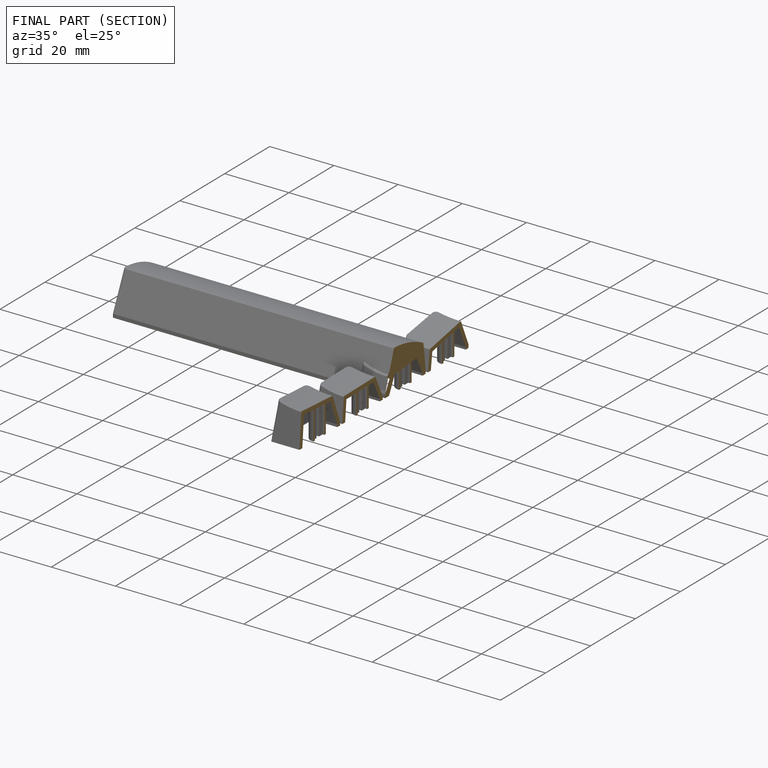
[diagram: finished part — half-section view (interior)]
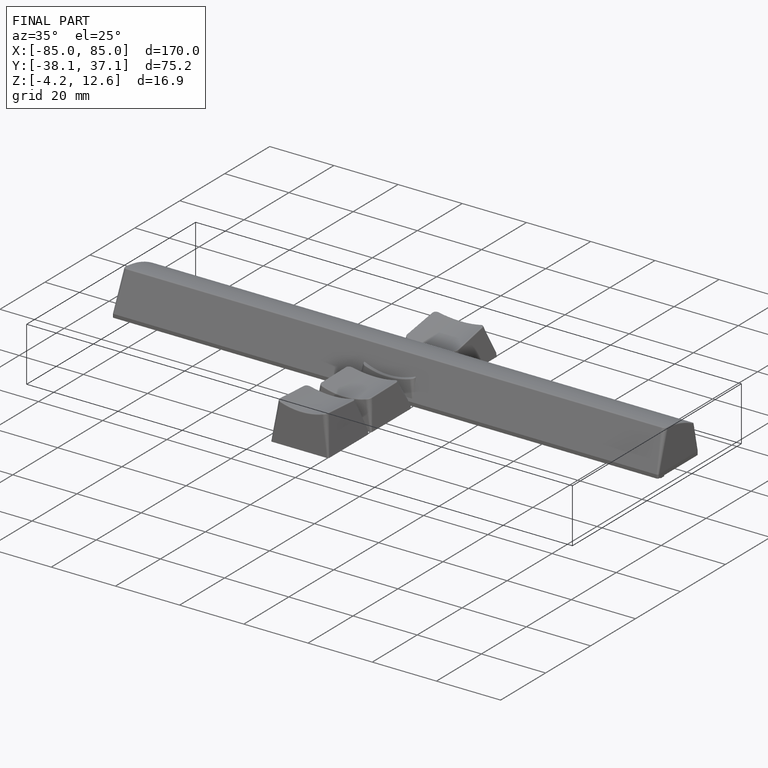
[diagram: finished part — iso view with bounding-box wireframe]
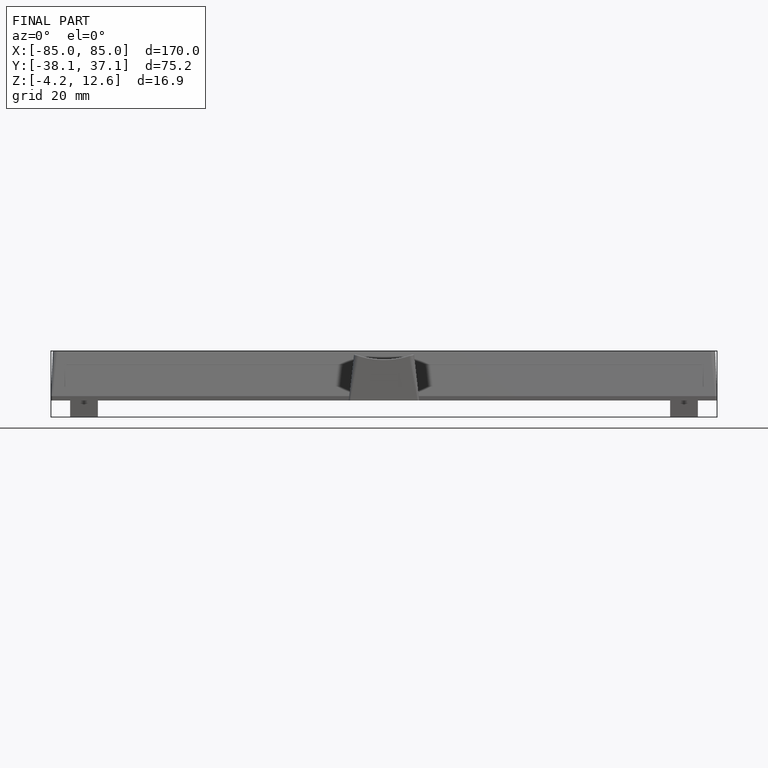
[diagram: finished part — front view with bounding-box wireframe]
